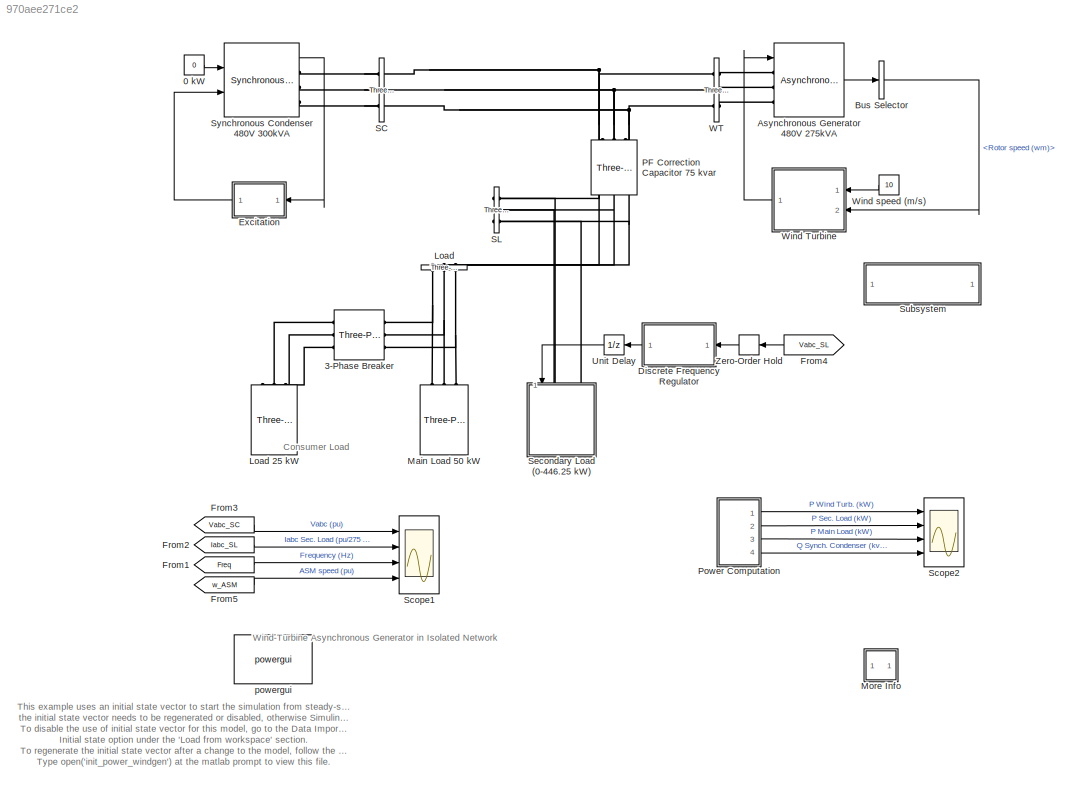
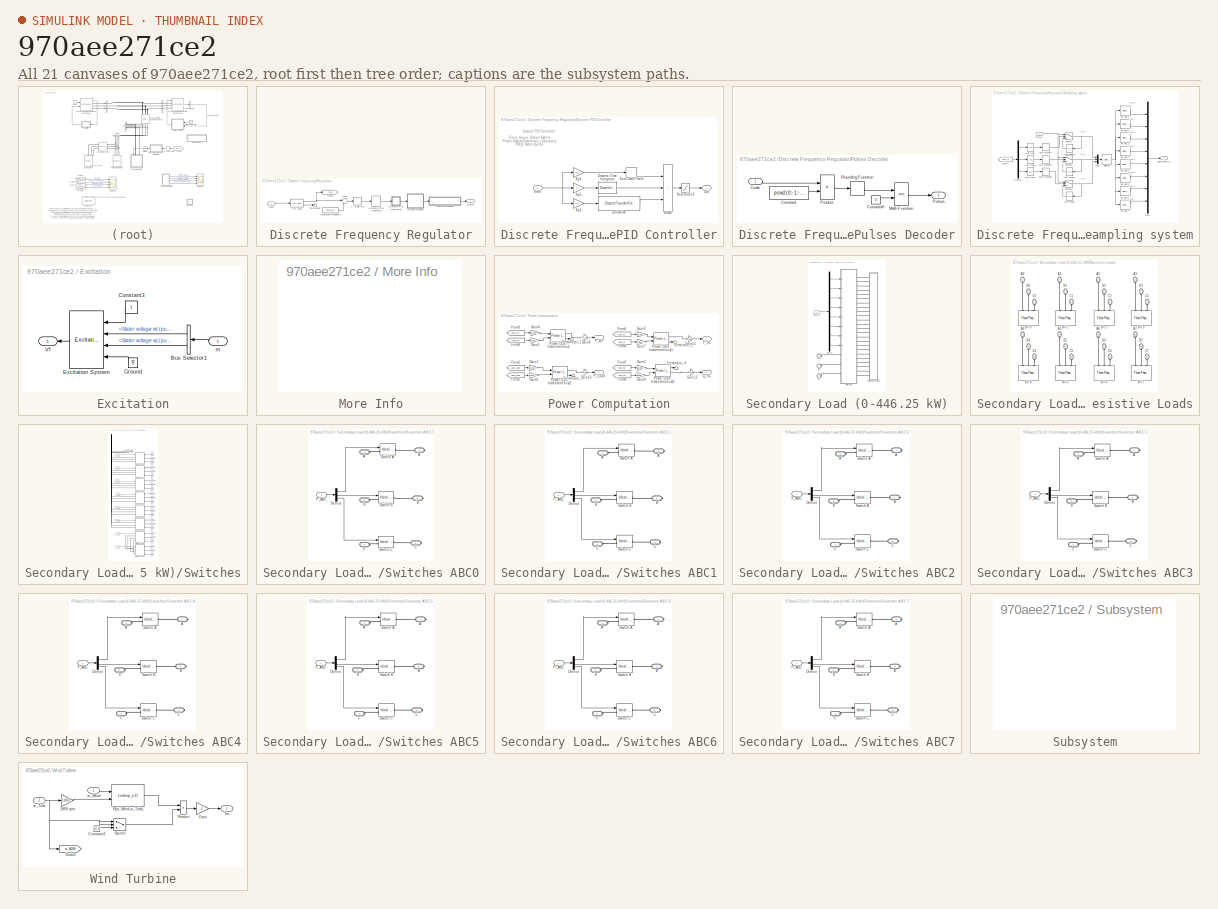
[diagram: thumbnail index - all 21 canvases of the model, root first then tree order]
MODEL slx_970aee271ce2
KIND model
CONFIG AbsTol = auto
CONFIG EnableMultiTasking = on
CONFIG FixedStep = auto
CONFIG InitFcn = [xInitial,psbwindgen_char] = init_power_windgen;
CONFIG MaxStep = auto
CONFIG MinStep = auto
CONFIG PostLoadFcn = find_system (gcs, 'LookUnderMasks', 'all', 'FollowLinks', 'on');
CONFIG RelTol = 1e-4
CONFIG SampleTimeConstraint = Unconstrained
CONFIG SolverName = ode23tb
CONFIG StartTime = 0.0
CONFIG StopTime = 5
BLOCK [Constant] 0 kW
  Value = 0
BLOCK [Reference] 3-Phase Breaker  REF=spsThreePhaseBreakerLib/Three-Phase Breaker
  AttributesFormatString = \n
  Ports = [0, 0, 0, 0, 0, 3, 3]
  SourceBlock = spsThreePhaseBreakerLib/Three-Phase Breaker
  SourceProductBaseCode = PS
  SourceType = Three-Phase Breaker
BLOCK [Reference] Asynchronous Generator 480V 275kVA  REF=spsAsynchronousMachinepuUnitsLib/Asynchronous Machine
pu Units
  AttributesFormatString = \n
  Ports = [1, 1, 0, 0, 0, 3]
  SourceBlock = spsAsynchronousMachinepuUnitsLib/Asynchronous Machine\npu Units
  SourceProductBaseCode = PS
  SourceType = Asynchronous Machine
BLOCK [BusSelector] Bus Selector
  OutputSignals = Mechanical.Rotor speed (wm)
  Ports = [1, 1]
BLOCK [SubSystem] Discrete Frequency Regulator
  Ports = [1, 1]
  RequestExecContextInheritance = off
BLOCK [DeadZone] Discrete Frequency Regulator/+//- 0.005 Hz
  LowerValue = -0.005
  UpperValue = 0.005
BLOCK [Outport] Discrete Frequency Regulator/Control
  VectorParamsAs1DForOutWhenUnconnected = off
BLOCK [SubSystem] Discrete Frequency Regulator/Discrete PID Controller
  DialogController = POWERSYS.PowerSysDialog
  Ports = [1, 1]
  RequestExecContextInheritance = off
BLOCK [DiscreteTransferFcn] Discrete Frequency Regulator/Discrete PID Controller/Derivative 
  Denominator = [Ts+2*TcD Ts-2*TcD]
  InputPortMap = u0
  Numerator = [2 -2]
  Ports = [1, 1]
  SampleTime = Ts
BLOCK [DiscreteIntegrator] Discrete Frequency Regulator/Discrete PID Controller/Discrete-Time Integrator
  ICPrevOutput = DiscIntNeverNeededParam
  ICPrevScaledInput = DiscIntNeverNeededParam
  InitialCondition = Init
  LimitOutput = on
  LowerSaturationLimit = LowerLimit
  Ports = [1, 1]
  SampleTime = Ts
  UpperSaturationLimit = UpperLimit
BLOCK [Inport] Discrete Frequency Regulator/Discrete PID Controller/Error
  SampleTime = Ts
BLOCK [Gain] Discrete Frequency Regulator/Discrete PID Controller/Kp4
  Gain = Kp
  OutDataTypeStr = Inherit: Same as input
  ParamDataTypeStr = Inherit: Same as input
  SampleTime = Ts
  SaturateOnIntegerOverflow = on
BLOCK [Gain] Discrete Frequency Regulator/Discrete PID Controller/Kp5
  Gain = Ki
  OutDataTypeStr = Inherit: Same as input
  ParamDataTypeStr = Inherit: Same as input
  SampleTime = Ts
  SaturateOnIntegerOverflow = on
BLOCK [Gain] Discrete Frequency Regulator/Discrete PID Controller/Kp6
  Gain = Kd
  OutDataTypeStr = Inherit: Same as input
  ParamDataTypeStr = Inherit: Same as input
  SampleTime = Ts
  SaturateOnIntegerOverflow = on
BLOCK [Outport] Discrete Frequency Regulator/Discrete PID Controller/Out
  InitialOutput = 0
  SampleTime = Ts
  VectorParamsAs1DForOutWhenUnconnected = off
BLOCK [Saturate] Discrete Frequency Regulator/Discrete PID Controller/Saturation2
  LowerLimit = LowerLimit
  NameLocation = top
  SampleTime = Ts
  UpperLimit = UpperLimit
BLOCK [Sum] Discrete Frequency Regulator/Discrete PID Controller/Sum6
  IconShape = rectangular
  InputSameDT = on
  Inputs = +++
  OutDataTypeStr = Inherit: Same as first input
  Ports = [3, 1]
  SampleTime = Ts
  SaturateOnIntegerOverflow = on
BLOCK [ZeroOrderHold] Discrete Frequency Regulator/Discrete PID Controller/Zero-Order Hold
  SampleTime = Ts
BLOCK [DiscreteIntegrator] Discrete Frequency Regulator/Discrete-Time Integrator
  ICPrevOutput = DiscIntNeverNeededParam
  ICPrevScaledInput = DiscIntNeverNeededParam
  LimitOutput = on
  LowerSaturationLimit = 0
  Ports = [1, 1]
  SampleTime = Ts
  UpperSaturationLimit = 1
BLOCK [Goto] Discrete Frequency Regulator/Goto1
  GotoTag = Freq
  TagVisibility = global
BLOCK [Reference] Discrete Frequency Regulator/PLL (3ph)  REF=spsPLL3phLib/PLL
(3ph)
  Ports = [1, 2]
  SourceBlock = spsPLL3phLib/PLL\n(3ph)
  SourceProductBaseCode = PS
  SourceType = PLL (3ph)
BLOCK [SubSystem] Discrete Frequency Regulator/Pulses Decoder
  Ports = [1, 1]
  RequestExecContextInheritance = off
BLOCK [Inport] Discrete Frequency Regulator/Pulses Decoder/Code
BLOCK [Constant] Discrete Frequency Regulator/Pulses Decoder/Constant
  Value = pow2(0:-1:-(n-1))
BLOCK [Constant] Discrete Frequency Regulator/Pulses Decoder/Constant6
  Value = 2
BLOCK [Math] Discrete Frequency Regulator/Pulses Decoder/Math Function
  Operator = rem
  Ports = [2, 1]
  SignedPower = on
BLOCK [Product] Discrete Frequency Regulator/Pulses Decoder/Product
  InputSameDT = on
  OutDataTypeStr = Inherit: Same as first input
  Ports = [2, 1]
  SaturateOnIntegerOverflow = on
BLOCK [Outport] Discrete Frequency Regulator/Pulses Decoder/Pulses
  VectorParamsAs1DForOutWhenUnconnected = off
BLOCK [Rounding] Discrete Frequency Regulator/Pulses Decoder/Rounding Function
BLOCK [Constant] Discrete Frequency Regulator/Reference Frequency
  Value = Freq_ref
BLOCK [SubSystem] Discrete Frequency Regulator/Sampling system
  Ports = [1, 1]
  RequestExecContextInheritance = off
BLOCK [Selector] Discrete Frequency Regulator/Sampling system/ Bit ABC4
  IndexOptions = Index vector (dialog)
  Indices = [13 14 15]
  InputPortWidth = 24
  OutputSizes = 1
  Ports = [1, 1]
BLOCK [Inport] Discrete Frequency Regulator/Sampling system/BITA0_7
BLOCK [Selector] Discrete Frequency Regulator/Sampling system/Bit ABC0
  IndexOptions = Index vector (dialog)
  Indices = [1 2 3]
  InputPortWidth = 24
  OutputSizes = 1
  Ports = [1, 1]
BLOCK [Selector] Discrete Frequency Regulator/Sampling system/Bit ABC1
  IndexOptions = Index vector (dialog)
  Indices = [4 5 6]
  InputPortWidth = 24
  OutputSizes = 1
  Ports = [1, 1]
BLOCK [Selector] Discrete Frequency Regulator/Sampling system/Bit ABC2
  IndexOptions = Index vector (dialog)
  Indices = [7 8 9]
  InputPortWidth = 24
  OutputSizes = 1
  Ports = [1, 1]
BLOCK [Selector] Discrete Frequency Regulator/Sampling system/Bit ABC3
  IndexOptions = Index vector (dialog)
  Indices = [10 11 12]
  InputPortWidth = 24
  OutputSizes = 1
  Ports = [1, 1]
BLOCK [Selector] Discrete Frequency Regulator/Sampling system/Bit ABC5
  IndexOptions = Index vector (dialog)
  Indices = [16 17 18]
  InputPortWidth = 24
  OutputSizes = 1
  Ports = [1, 1]
BLOCK [Selector] Discrete Frequency Regulator/Sampling system/Bit ABC6
  IndexOptions = Index vector (dialog)
  Indices = [19 20 21]
  InputPortWidth = 24
  OutputSizes = 1
  Ports = [1, 1]
BLOCK [Selector] Discrete Frequency Regulator/Sampling system/Bit ABC7
  IndexOptions = Index vector (dialog)
  Indices = [22 23 24]
  InputPortWidth = 24
  OutputSizes = 1
  Ports = [1, 1]
BLOCK [Demux] Discrete Frequency Regulator/Sampling system/Demux
  DisplayOption = none
  Outputs = 3
  Ports = [1, 3]
BLOCK [From] Discrete Frequency Regulator/Sampling system/From4
  CloseFcn = tagdialog Close
  GotoTag = Vabc_SL
  TagVisibility = global
BLOCK [Mux] Discrete Frequency Regulator/Sampling system/Mux
  DisplayOption = bar
  Inputs = 3
  Ports = [3, 1]
BLOCK [Mux] Discrete Frequency Regulator/Sampling system/Mux1
  DisplayOption = bar
  Inputs = 8
  Ports = [8, 1]
BLOCK [Outport] Discrete Frequency Regulator/Sampling system/Pulses_ABC0_7
  VectorParamsAs1DForOutWhenUnconnected = off
BLOCK [Selector] Discrete Frequency Regulator/Sampling system/Selector
  IndexOptions = Index vector (dialog)
  Indices = [1 9 17 2 10 18 3 11 19 4 12 20 5 13 21 6 14 22 7 15 23 8 16 24]
  InputPortWidth = 24
  OutputSizes = 1
  Ports = [1, 1]
BLOCK [Switch] Discrete Frequency Regulator/Sampling system/Switch
  Threshold = 0.5
BLOCK [Switch] Discrete Frequency Regulator/Sampling system/Switch1
  Threshold = 0.5
BLOCK [Switch] Discrete Frequency Regulator/Sampling system/Switch2
  Threshold = 0.5
BLOCK [UnitDelay] Discrete Frequency Regulator/Sampling system/Unit Delay
  HasFrameUpgradeWarning = on
  SampleTime = Ts
BLOCK [UnitDelay] Discrete Frequency Regulator/Sampling system/Unit Delay1
  HasFrameUpgradeWarning = on
  SampleTime = Ts
BLOCK [UnitDelay] Discrete Frequency Regulator/Sampling system/Unit Delay2
  HasFrameUpgradeWarning = on
  SampleTime = Ts
BLOCK [UnitDelay] Discrete Frequency Regulator/Sampling system/Unit Delay4
  HasFrameUpgradeWarning = on
  SampleTime = Ts
BLOCK [UnitDelay] Discrete Frequency Regulator/Sampling system/Unit Delay5
  HasFrameUpgradeWarning = on
  SampleTime = Ts
BLOCK [UnitDelay] Discrete Frequency Regulator/Sampling system/Unit Delay6
  HasFrameUpgradeWarning = on
  SampleTime = Ts
BLOCK [HitCross] Discrete Frequency Regulator/Sampling system/Zero crossing
  Ports = [1, 1]
BLOCK [HitCross] Discrete Frequency Regulator/Sampling system/Zero crossing1
  Ports = [1, 1]
BLOCK [HitCross] Discrete Frequency Regulator/Sampling system/Zero crossing2
  Ports = [1, 1]
BLOCK [Sum] Discrete Frequency Regulator/Sum
  InputSameDT = on
  Inputs = |+-
  OutDataTypeStr = Inherit: Same as first input
  Ports = [2, 1]
  SaturateOnIntegerOverflow = on
BLOCK [Terminator] Discrete Frequency Regulator/Terminator
BLOCK [Inport] Discrete Frequency Regulator/Vabc
BLOCK [SubSystem] Excitation
  NameLocation = top
  Ports = [1, 1]
  RequestExecContextInheritance = off
BLOCK [BusSelector] Excitation/Bus Selector1
  NameLocation = top
  OutputSignals = dq0 components.Stator voltage  vd (pu),dq0 components.Stator voltage  vq (pu)
  Ports = [1, 2]
BLOCK [Constant] Excitation/Constant3
  NameLocation = top
BLOCK [Reference] Excitation/Excitation System  REF=spsExcitationSystemLib/Excitation System
  Ports = [4, 1]
  SourceBlock = spsExcitationSystemLib/Excitation System
  SourceProductBaseCode = PS
  SourceType = Excitation System
BLOCK [Ground] Excitation/Ground
BLOCK [Outport] Excitation/Vf
  VectorParamsAs1DForOutWhenUnconnected = off
BLOCK [Inport] Excitation/m
BLOCK [From] From1
  CloseFcn = tagdialog Close
  GotoTag = Freq
  TagVisibility = global
BLOCK [From] From2
  CloseFcn = tagdialog Close
  GotoTag = Iabc_SL
  TagVisibility = global
BLOCK [From] From3
  CloseFcn = tagdialog Close
  GotoTag = Vabc_SC
  TagVisibility = global
BLOCK [From] From4
  CloseFcn = tagdialog Close
  GotoTag = Vabc_SL
  TagVisibility = global
BLOCK [From] From5
  CloseFcn = tagdialog Close
  GotoTag = w_ASM
  TagVisibility = global
BLOCK [Reference] Load  REF=spsThreePhaseVIMeasurementLib/Three-Phase
V-I Measurement
  NameLocation = left
  Ports = [0, 0, 0, 0, 0, 3, 3]
  SourceBlock = spsThreePhaseVIMeasurementLib/Three-Phase\nV-I Measurement
  SourceProductBaseCode = PS
  SourceType = Three-Phase VI Measurement
BLOCK [Reference] Load 25 kW  REF=spsThreePhaseParallelRLCLoadLib/Three-Phase
Parallel RLC Load
  AttributesFormatString = \n
  NameLocation = right
  Ports = [0, 0, 0, 0, 0, 3]
  SourceBlock = spsThreePhaseParallelRLCLoadLib/Three-Phase\nParallel RLC Load
  SourceProductBaseCode = PS
  SourceType = Three-Phase Parallel RLC Load
BLOCK [Reference] Main Load 50 kW  REF=spsThreePhaseParallelRLCLoadLib/Three-Phase
Parallel RLC Load
  AttributesFormatString = \n
  NameLocation = left
  Ports = [0, 0, 0, 0, 0, 3]
  SourceBlock = spsThreePhaseParallelRLCLoadLib/Three-Phase\nParallel RLC Load
  SourceProductBaseCode = PS
  SourceType = Three-Phase Parallel RLC Load
BLOCK [SubSystem] More Info
  OpenFcn = showdemo(bdroot(gcb))
  Ports = []
  RequestExecContextInheritance = off
BLOCK [Reference] PF Correction Capacitor 75 kvar  REF=spsThreePhaseParallelRLCLoadLib/Three-Phase
Parallel RLC Load
  AttributesFormatString = \n
  NameLocation = right
  Ports = [0, 0, 0, 0, 0, 3]
  SourceBlock = spsThreePhaseParallelRLCLoadLib/Three-Phase\nParallel RLC Load
  SourceProductBaseCode = PS
  SourceType = Three-Phase Parallel RLC Load
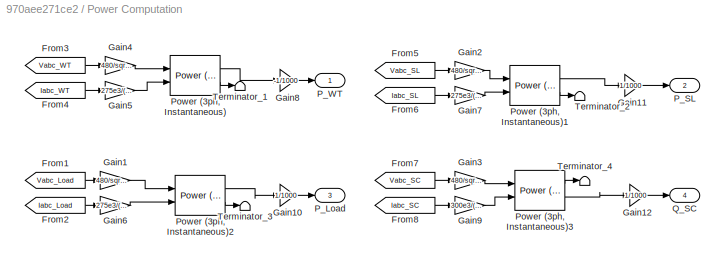
BLOCK [SubSystem] Power Computation
  Ports = [0, 4]
  RequestExecContextInheritance = off
BLOCK [From] Power Computation/From1
  CloseFcn = tagdialog Close
  GotoTag = Vabc_Load
  TagVisibility = global
BLOCK [From] Power Computation/From2
  CloseFcn = tagdialog Close
  GotoTag = Iabc_Load
  TagVisibility = global
BLOCK [From] Power Computation/From3
  CloseFcn = tagdialog Close
  GotoTag = Vabc_WT
  TagVisibility = global
BLOCK [From] Power Computation/From4
  CloseFcn = tagdialog Close
  GotoTag = Iabc_WT
  TagVisibility = global
BLOCK [From] Power Computation/From5
  CloseFcn = tagdialog Close
  GotoTag = Vabc_SL
  TagVisibility = global
BLOCK [From] Power Computation/From6
  CloseFcn = tagdialog Close
  GotoTag = Iabc_SL
  TagVisibility = global
BLOCK [From] Power Computation/From7
  CloseFcn = tagdialog Close
  GotoTag = Vabc_SC
  TagVisibility = global
BLOCK [From] Power Computation/From8
  CloseFcn = tagdialog Close
  GotoTag = Iabc_SC
  TagVisibility = global
BLOCK [Gain] Power Computation/Gain1
  Gain = 480/sqrt(3)*sqrt(2)
  OutDataTypeStr = Inherit: Same as input
  ParamDataTypeStr = Inherit: Same as input
  SaturateOnIntegerOverflow = on
BLOCK [Gain] Power Computation/Gain10
  Gain = 1/1000
  OutDataTypeStr = Inherit: Same as input
  ParamDataTypeStr = Inherit: Same as input
  SaturateOnIntegerOverflow = on
BLOCK [Gain] Power Computation/Gain11
  Gain = 1/1000
  OutDataTypeStr = Inherit: Same as input
  ParamDataTypeStr = Inherit: Same as input
  SaturateOnIntegerOverflow = on
BLOCK [Gain] Power Computation/Gain12
  Gain = 1/1000
  OutDataTypeStr = Inherit: Same as input
  ParamDataTypeStr = Inherit: Same as input
  SaturateOnIntegerOverflow = on
BLOCK [Gain] Power Computation/Gain2
  Gain = 480/sqrt(3)*sqrt(2)
  OutDataTypeStr = Inherit: Same as input
  ParamDataTypeStr = Inherit: Same as input
  SaturateOnIntegerOverflow = on
BLOCK [Gain] Power Computation/Gain3
  Gain = 480/sqrt(3)*sqrt(2)
  OutDataTypeStr = Inherit: Same as input
  ParamDataTypeStr = Inherit: Same as input
  SaturateOnIntegerOverflow = on
BLOCK [Gain] Power Computation/Gain4
  Gain = 480/sqrt(3)*sqrt(2)
  OutDataTypeStr = Inherit: Same as input
  ParamDataTypeStr = Inherit: Same as input
  SaturateOnIntegerOverflow = on
BLOCK [Gain] Power Computation/Gain5
  Gain = 275e3/(sqrt(3)*480)*sqrt(2)
  OutDataTypeStr = Inherit: Same as input
  ParamDataTypeStr = Inherit: Same as input
  SaturateOnIntegerOverflow = on
BLOCK [Gain] Power Computation/Gain6
  Gain = 275e3/(sqrt(3)*480)*sqrt(2)
  OutDataTypeStr = Inherit: Same as input
  ParamDataTypeStr = Inherit: Same as input
  SaturateOnIntegerOverflow = on
BLOCK [Gain] Power Computation/Gain7
  Gain = 275e3/(sqrt(3)*480)*sqrt(2)
  OutDataTypeStr = Inherit: Same as input
  ParamDataTypeStr = Inherit: Same as input
  SaturateOnIntegerOverflow = on
BLOCK [Gain] Power Computation/Gain8
  Gain = -1/1000
  OutDataTypeStr = Inherit: Same as input
  ParamDataTypeStr = Inherit: Same as input
  SaturateOnIntegerOverflow = on
BLOCK [Gain] Power Computation/Gain9
  Gain = 300e3/(sqrt(3)*480)*sqrt(2)
  OutDataTypeStr = Inherit: Same as input
  ParamDataTypeStr = Inherit: Same as input
  SaturateOnIntegerOverflow = on
BLOCK [Outport] Power Computation/P_Load
  Port = 3
  VectorParamsAs1DForOutWhenUnconnected = off
BLOCK [Outport] Power Computation/P_SL
  Port = 2
  VectorParamsAs1DForOutWhenUnconnected = off
BLOCK [Outport] Power Computation/P_WT
  VectorParamsAs1DForOutWhenUnconnected = off
BLOCK [Reference] Power Computation/Power (3ph, Instantaneous)  REF=spsPower3phInstantaneousLib/Power
(3ph, Instantaneous)
  Ports = [2, 2]
  SourceBlock = spsPower3phInstantaneousLib/Power\n(3ph, Instantaneous)
  SourceProductBaseCode = PS
  SourceType = Power (3ph, Instantaneous)
BLOCK [Reference] Power Computation/Power (3ph, Instantaneous)1  REF=spsPower3phInstantaneousLib/Power
(3ph, Instantaneous)
  Ports = [2, 2]
  SourceBlock = spsPower3phInstantaneousLib/Power\n(3ph, Instantaneous)
  SourceProductBaseCode = PS
  SourceType = Power (3ph, Instantaneous)
BLOCK [Reference] Power Computation/Power (3ph, Instantaneous)2  REF=spsPower3phInstantaneousLib/Power
(3ph, Instantaneous)
  Ports = [2, 2]
  SourceBlock = spsPower3phInstantaneousLib/Power\n(3ph, Instantaneous)
  SourceProductBaseCode = PS
  SourceType = Power (3ph, Instantaneous)
BLOCK [Reference] Power Computation/Power (3ph, Instantaneous)3  REF=spsPower3phInstantaneousLib/Power
(3ph, Instantaneous)
  Ports = [2, 2]
  SourceBlock = spsPower3phInstantaneousLib/Power\n(3ph, Instantaneous)
  SourceProductBaseCode = PS
  SourceType = Power (3ph, Instantaneous)
BLOCK [Outport] Power Computation/Q_SC
  Port = 4
  VectorParamsAs1DForOutWhenUnconnected = off
BLOCK [Terminator] Power Computation/Terminator_1
BLOCK [Terminator] Power Computation/Terminator_2
BLOCK [Terminator] Power Computation/Terminator_3
BLOCK [Terminator] Power Computation/Terminator_4
BLOCK [Reference] SC  REF=spsThreePhaseVIMeasurementLib/Three-Phase
V-I Measurement
  Ports = [0, 0, 0, 0, 0, 3, 3]
  SourceBlock = spsThreePhaseVIMeasurementLib/Three-Phase\nV-I Measurement
  SourceProductBaseCode = PS
  SourceType = Three-Phase VI Measurement
BLOCK [Reference] SL  REF=spsThreePhaseVIMeasurementLib/Three-Phase
V-I Measurement
  Ports = [0, 0, 0, 0, 0, 3, 3]
  SourceBlock = spsThreePhaseVIMeasurementLib/Three-Phase\nV-I Measurement
  SourceProductBaseCode = PS
  SourceType = Three-Phase VI Measurement
BLOCK [Scope] Scope1
  Floating = off
  NumInputPorts = 4
  Ports = [4]
  ScopeSpecificationString = Simulink.scopes.TimeScopeBlockCfg('CurrentConfiguration', extmgr.ConfigurationSet(extmgr.Configuration('Core','General UI',true),extmgr.Configuration('Core','Source UI',true),extmgr.Configuration('Sources','WiredSimulink',true,'DataLoggingSaveFormat','Array','DataLoggingDecimation','1'),extmgr.Configuration('Visuals','Time Domain',true,'SerializedDisplays',{struct('MinYLimReal','-2','MaxYLimReal',...<+3791ch>
BLOCK [Scope] Scope2
  Floating = off
  NumInputPorts = 4
  Ports = [4]
  ScopeSpecificationString = Simulink.scopes.TimeScopeBlockCfg('CurrentConfiguration', extmgr.ConfigurationSet(extmgr.Configuration('Core','General UI',true),extmgr.Configuration('Core','Source UI',true),extmgr.Configuration('Sources','WiredSimulink',true,'DataLoggingSaveFormat','Array','DataLoggingDecimation','1'),extmgr.Configuration('Visuals','Time Domain',true,'SerializedDisplays',{struct('MinYLimReal','189.66316','MaxYLi...<+3747ch>
BLOCK [SubSystem] Secondary Load (0-446.25 kW)
  NameLocation = right
  Ports = [1, 0, 0, 0, 0, 3]
  RequestExecContextInheritance = off
BLOCK [PMIOPort] Secondary Load (0-446.25 kW)/A
  NameLocation = top
  Side = Left
BLOCK [PMIOPort] Secondary Load (0-446.25 kW)/B
  NameLocation = top
  Port = 2
  Side = Left
BLOCK [PMIOPort] Secondary Load (0-446.25 kW)/C
  NameLocation = top
  Port = 3
  Side = Left
BLOCK [Inport] Secondary Load (0-446.25 kW)/Control
BLOCK [Demux] Secondary Load (0-446.25 kW)/Demux
  DisplayOption = none
  Outputs = 8
  Ports = [1, 8]
BLOCK [SubSystem] Secondary Load (0-446.25 kW)/Resistive Loads
  Ports = [0, 0, 0, 0, 0, 24]
  RequestExecContextInheritance = off
BLOCK [PMIOPort] Secondary Load (0-446.25 kW)/Resistive Loads/A0
  NameLocation = right
  Side = Left
BLOCK [PMIOPort] Secondary Load (0-446.25 kW)/Resistive Loads/A1
  NameLocation = right
  Port = 4
  Side = Left
BLOCK [PMIOPort] Secondary Load (0-446.25 kW)/Resistive Loads/A2
  NameLocation = right
  Port = 7
  Side = Left
BLOCK [PMIOPort] Secondary Load (0-446.25 kW)/Resistive Loads/A3
  NameLocation = right
  Port = 10
  Side = Left
BLOCK [PMIOPort] Secondary Load (0-446.25 kW)/Resistive Loads/A4
  NameLocation = right
  Port = 13
  Side = Left
BLOCK [PMIOPort] Secondary Load (0-446.25 kW)/Resistive Loads/A5
  NameLocation = right
  Port = 16
  Side = Left
BLOCK [PMIOPort] Secondary Load (0-446.25 kW)/Resistive Loads/A6
  NameLocation = right
  Port = 19
  Side = Left
BLOCK [PMIOPort] Secondary Load (0-446.25 kW)/Resistive Loads/A7
  NameLocation = right
  Port = 22
  Side = Left
BLOCK [PMIOPort] Secondary Load (0-446.25 kW)/Resistive Loads/B0
  NameLocation = right
  Port = 2
  Side = Left
BLOCK [PMIOPort] Secondary Load (0-446.25 kW)/Resistive Loads/B1
  NameLocation = right
  Port = 5
  Side = Left
BLOCK [PMIOPort] Secondary Load (0-446.25 kW)/Resistive Loads/B2
  NameLocation = right
  Port = 8
  Side = Left
BLOCK [PMIOPort] Secondary Load (0-446.25 kW)/Resistive Loads/B3
  NameLocation = right
  Port = 11
  Side = Left
BLOCK [PMIOPort] Secondary Load (0-446.25 kW)/Resistive Loads/B4
  NameLocation = right
  Port = 14
  Side = Left
BLOCK [PMIOPort] Secondary Load (0-446.25 kW)/Resistive Loads/B5
  NameLocation = right
  Port = 17
  Side = Left
BLOCK [PMIOPort] Secondary Load (0-446.25 kW)/Resistive Loads/B6
  NameLocation = right
  Port = 20
  Side = Left
BLOCK [PMIOPort] Secondary Load (0-446.25 kW)/Resistive Loads/B7
  NameLocation = right
  Port = 23
  Side = Left
BLOCK [Reference] Secondary Load (0-446.25 kW)/Resistive Loads/Bit 0  REF=spsThreePhaseParallelRLCLoadLib/Three-Phase
Parallel RLC Load
  AttributesFormatString = \n
  NameLocation = right
  Ports = [0, 0, 0, 0, 0, 3]
  SourceBlock = spsThreePhaseParallelRLCLoadLib/Three-Phase\nParallel RLC Load
  SourceProductBaseCode = PS
  SourceType = Three-Phase Parallel RLC Load
BLOCK [Reference] Secondary Load (0-446.25 kW)/Resistive Loads/Bit 1  REF=spsThreePhaseParallelRLCLoadLib/Three-Phase
Parallel RLC Load
  AttributesFormatString = \n
  NameLocation = right
  Ports = [0, 0, 0, 0, 0, 3]
  SourceBlock = spsThreePhaseParallelRLCLoadLib/Three-Phase\nParallel RLC Load
  SourceProductBaseCode = PS
  SourceType = Three-Phase Parallel RLC Load
BLOCK [Reference] Secondary Load (0-446.25 kW)/Resistive Loads/Bit 2  REF=spsThreePhaseParallelRLCLoadLib/Three-Phase
Parallel RLC Load
  AttributesFormatString = \n
  NameLocation = right
  Ports = [0, 0, 0, 0, 0, 3]
  SourceBlock = spsThreePhaseParallelRLCLoadLib/Three-Phase\nParallel RLC Load
  SourceProductBaseCode = PS
  SourceType = Three-Phase Parallel RLC Load
BLOCK [Reference] Secondary Load (0-446.25 kW)/Resistive Loads/Bit 3  REF=spsThreePhaseParallelRLCLoadLib/Three-Phase
Parallel RLC Load
  AttributesFormatString = \n
  NameLocation = right
  Ports = [0, 0, 0, 0, 0, 3]
  SourceBlock = spsThreePhaseParallelRLCLoadLib/Three-Phase\nParallel RLC Load
  SourceProductBaseCode = PS
  SourceType = Three-Phase Parallel RLC Load
BLOCK [Reference] Secondary Load (0-446.25 kW)/Resistive Loads/Bit 4  REF=spsThreePhaseParallelRLCLoadLib/Three-Phase
Parallel RLC Load
  AttributesFormatString = \n
  NameLocation = right
  Ports = [0, 0, 0, 0, 0, 3]
  SourceBlock = spsThreePhaseParallelRLCLoadLib/Three-Phase\nParallel RLC Load
  SourceProductBaseCode = PS
  SourceType = Three-Phase Parallel RLC Load
BLOCK [Reference] Secondary Load (0-446.25 kW)/Resistive Loads/Bit 5  REF=spsThreePhaseParallelRLCLoadLib/Three-Phase
Parallel RLC Load
  AttributesFormatString = \n
  NameLocation = right
  Ports = [0, 0, 0, 0, 0, 3]
  SourceBlock = spsThreePhaseParallelRLCLoadLib/Three-Phase\nParallel RLC Load
  SourceProductBaseCode = PS
  SourceType = Three-Phase Parallel RLC Load
BLOCK [Reference] Secondary Load (0-446.25 kW)/Resistive Loads/Bit 6  REF=spsThreePhaseParallelRLCLoadLib/Three-Phase
Parallel RLC Load
  AttributesFormatString = \n
  NameLocation = right
  Ports = [0, 0, 0, 0, 0, 3]
  SourceBlock = spsThreePhaseParallelRLCLoadLib/Three-Phase\nParallel RLC Load
  SourceProductBaseCode = PS
  SourceType = Three-Phase Parallel RLC Load
BLOCK [Reference] Secondary Load (0-446.25 kW)/Resistive Loads/Bit 7  REF=spsThreePhaseParallelRLCLoadLib/Three-Phase
Parallel RLC Load
  AttributesFormatString = \n
  NameLocation = right
  Ports = [0, 0, 0, 0, 0, 3]
  SourceBlock = spsThreePhaseParallelRLCLoadLib/Three-Phase\nParallel RLC Load
  SourceProductBaseCode = PS
  SourceType = Three-Phase Parallel RLC Load
BLOCK [PMIOPort] Secondary Load (0-446.25 kW)/Resistive Loads/C0
  NameLocation = right
  Port = 3
  Side = Left
BLOCK [PMIOPort] Secondary Load (0-446.25 kW)/Resistive Loads/C1
  NameLocation = right
  Port = 6
  Side = Left
BLOCK [PMIOPort] Secondary Load (0-446.25 kW)/Resistive Loads/C2
  NameLocation = right
  Port = 9
  Side = Left
BLOCK [PMIOPort] Secondary Load (0-446.25 kW)/Resistive Loads/C3
  NameLocation = right
  Port = 12
  Side = Left
BLOCK [PMIOPort] Secondary Load (0-446.25 kW)/Resistive Loads/C4
  NameLocation = right
  Port = 15
  Side = Left
BLOCK [PMIOPort] Secondary Load (0-446.25 kW)/Resistive Loads/C5
  NameLocation = right
  Port = 18
  Side = Left
BLOCK [PMIOPort] Secondary Load (0-446.25 kW)/Resistive Loads/C6
  NameLocation = right
  Port = 21
  Side = Left
BLOCK [PMIOPort] Secondary Load (0-446.25 kW)/Resistive Loads/C7
  NameLocation = right
  Port = 24
  Side = Left
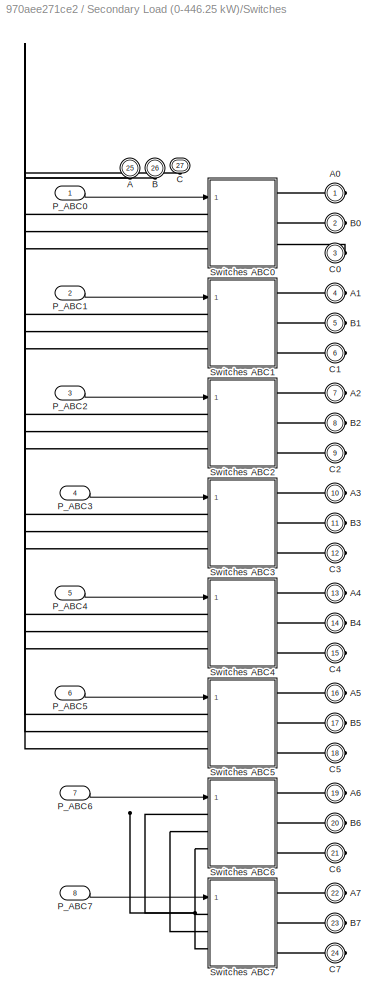
BLOCK [SubSystem] Secondary Load (0-446.25 kW)/Switches
  Ports = [8, 0, 0, 0, 0, 3, 24]
  RequestExecContextInheritance = off
BLOCK [PMIOPort] Secondary Load (0-446.25 kW)/Switches/A
  NameLocation = left
  Port = 25
  Side = Left
BLOCK [PMIOPort] Secondary Load (0-446.25 kW)/Switches/A0
  Side = Right
BLOCK [PMIOPort] Secondary Load (0-446.25 kW)/Switches/A1
  Port = 4
  Side = Right
BLOCK [PMIOPort] Secondary Load (0-446.25 kW)/Switches/A2
  Port = 7
  Side = Right
BLOCK [PMIOPort] Secondary Load (0-446.25 kW)/Switches/A3
  Port = 10
  Side = Right
BLOCK [PMIOPort] Secondary Load (0-446.25 kW)/Switches/A4
  Port = 13
  Side = Right
BLOCK [PMIOPort] Secondary Load (0-446.25 kW)/Switches/A5
  Port = 16
  Side = Right
BLOCK [PMIOPort] Secondary Load (0-446.25 kW)/Switches/A6
  Port = 19
  Side = Right
BLOCK [PMIOPort] Secondary Load (0-446.25 kW)/Switches/A7
  Port = 22
  Side = Right
BLOCK [PMIOPort] Secondary Load (0-446.25 kW)/Switches/B
  NameLocation = right
  Port = 26
  Side = Left
BLOCK [PMIOPort] Secondary Load (0-446.25 kW)/Switches/B0
  Port = 2
  Side = Right
BLOCK [PMIOPort] Secondary Load (0-446.25 kW)/Switches/B1
  Port = 5
  Side = Right
BLOCK [PMIOPort] Secondary Load (0-446.25 kW)/Switches/B2
  Port = 8
  Side = Right
BLOCK [PMIOPort] Secondary Load (0-446.25 kW)/Switches/B3
  Port = 11
  Side = Right
BLOCK [PMIOPort] Secondary Load (0-446.25 kW)/Switches/B4
  Port = 14
  Side = Right
BLOCK [PMIOPort] Secondary Load (0-446.25 kW)/Switches/B5
  Port = 17
  Side = Right
BLOCK [PMIOPort] Secondary Load (0-446.25 kW)/Switches/B6
  Port = 20
  Side = Right
BLOCK [PMIOPort] Secondary Load (0-446.25 kW)/Switches/B7
  Port = 23
  Side = Right
BLOCK [PMIOPort] Secondary Load (0-446.25 kW)/Switches/C
  NameLocation = right
  Port = 27
  Side = Left
BLOCK [PMIOPort] Secondary Load (0-446.25 kW)/Switches/C0
  Port = 3
  Side = Right
BLOCK [PMIOPort] Secondary Load (0-446.25 kW)/Switches/C1
  Port = 6
  Side = Right
BLOCK [PMIOPort] Secondary Load (0-446.25 kW)/Switches/C2
  Port = 9
  Side = Right
BLOCK [PMIOPort] Secondary Load (0-446.25 kW)/Switches/C3
  Port = 12
  Side = Right
BLOCK [PMIOPort] Secondary Load (0-446.25 kW)/Switches/C4
  Port = 15
  Side = Right
BLOCK [PMIOPort] Secondary Load (0-446.25 kW)/Switches/C5
  Port = 18
  Side = Right
BLOCK [PMIOPort] Secondary Load (0-446.25 kW)/Switches/C6
  Port = 21
  Side = Right
BLOCK [PMIOPort] Secondary Load (0-446.25 kW)/Switches/C7
  Port = 24
  Side = Right
BLOCK [Inport] Secondary Load (0-446.25 kW)/Switches/P_ABC0
BLOCK [Inport] Secondary Load (0-446.25 kW)/Switches/P_ABC1
  Port = 2
BLOCK [Inport] Secondary Load (0-446.25 kW)/Switches/P_ABC2
  Port = 3
BLOCK [Inport] Secondary Load (0-446.25 kW)/Switches/P_ABC3
  Port = 4
BLOCK [Inport] Secondary Load (0-446.25 kW)/Switches/P_ABC4
  Port = 5
BLOCK [Inport] Secondary Load (0-446.25 kW)/Switches/P_ABC5
  Port = 6
BLOCK [Inport] Secondary Load (0-446.25 kW)/Switches/P_ABC6
  Port = 7
BLOCK [Inport] Secondary Load (0-446.25 kW)/Switches/P_ABC7
  Port = 8
BLOCK [SubSystem] Secondary Load (0-446.25 kW)/Switches/Switches ABC0
  Ports = [1, 0, 0, 0, 0, 3, 3]
  RequestExecContextInheritance = off
BLOCK [PMIOPort] Secondary Load (0-446.25 kW)/Switches/Switches ABC0/A
  Side = Left
BLOCK [PMIOPort] Secondary Load (0-446.25 kW)/Switches/Switches ABC0/A 
  Port = 4
  Side = Right
BLOCK [PMIOPort] Secondary Load (0-446.25 kW)/Switches/Switches ABC0/B
  Port = 2
  Side = Left
BLOCK [PMIOPort] Secondary Load (0-446.25 kW)/Switches/Switches ABC0/B 
  Port = 5
  Side = Right
BLOCK [PMIOPort] Secondary Load (0-446.25 kW)/Switches/Switches ABC0/C
  Port = 3
  Side = Left
BLOCK [PMIOPort] Secondary Load (0-446.25 kW)/Switches/Switches ABC0/C 
  Port = 6
  Side = Right
BLOCK [Demux] Secondary Load (0-446.25 kW)/Switches/Switches ABC0/Demux
  DisplayOption = none
  Outputs = 3
  Ports = [1, 3]
BLOCK [Inport] Secondary Load (0-446.25 kW)/Switches/Switches ABC0/P_ABC
BLOCK [Reference] Secondary Load (0-446.25 kW)/Switches/Switches ABC0/Switch A  REF=spsIdealSwitchLib/Ideal Switch
  AttributesFormatString = \n
  Ports = [1, 0, 0, 0, 0, 1, 1]
  SourceBlock = spsIdealSwitchLib/Ideal Switch
  SourceProductBaseCode = PS
  SourceType = Ideal Switch
BLOCK [Reference] Secondary Load (0-446.25 kW)/Switches/Switches ABC0/Switch B  REF=spsIdealSwitchLib/Ideal Switch
  AttributesFormatString = \n
  Ports = [1, 0, 0, 0, 0, 1, 1]
  SourceBlock = spsIdealSwitchLib/Ideal Switch
  SourceProductBaseCode = PS
  SourceType = Ideal Switch
BLOCK [Reference] Secondary Load (0-446.25 kW)/Switches/Switches ABC0/Switch C  REF=spsIdealSwitchLib/Ideal Switch
  AttributesFormatString = \n
  Ports = [1, 0, 0, 0, 0, 1, 1]
  SourceBlock = spsIdealSwitchLib/Ideal Switch
  SourceProductBaseCode = PS
  SourceType = Ideal Switch
BLOCK [SubSystem] Secondary Load (0-446.25 kW)/Switches/Switches ABC1
  Ports = [1, 0, 0, 0, 0, 3, 3]
  RequestExecContextInheritance = off
BLOCK [PMIOPort] Secondary Load (0-446.25 kW)/Switches/Switches ABC1/A
  Side = Left
BLOCK [PMIOPort] Secondary Load (0-446.25 kW)/Switches/Switches ABC1/A 
  Port = 4
  Side = Right
BLOCK [PMIOPort] Secondary Load (0-446.25 kW)/Switches/Switches ABC1/B
  Port = 2
  Side = Left
BLOCK [PMIOPort] Secondary Load (0-446.25 kW)/Switches/Switches ABC1/B 
  Port = 5
  Side = Right
BLOCK [PMIOPort] Secondary Load (0-446.25 kW)/Switches/Switches ABC1/C
  Port = 3
  Side = Left
BLOCK [PMIOPort] Secondary Load (0-446.25 kW)/Switches/Switches ABC1/C 
  Port = 6
  Side = Right
BLOCK [Demux] Secondary Load (0-446.25 kW)/Switches/Switches ABC1/Demux
  DisplayOption = none
  Outputs = 3
  Ports = [1, 3]
BLOCK [Inport] Secondary Load (0-446.25 kW)/Switches/Switches ABC1/P_ABC
BLOCK [Reference] Secondary Load (0-446.25 kW)/Switches/Switches ABC1/Switch A  REF=spsIdealSwitchLib/Ideal Switch
  AttributesFormatString = \n
  Ports = [1, 0, 0, 0, 0, 1, 1]
  SourceBlock = spsIdealSwitchLib/Ideal Switch
  SourceProductBaseCode = PS
  SourceType = Ideal Switch
BLOCK [Reference] Secondary Load (0-446.25 kW)/Switches/Switches ABC1/Switch B  REF=spsIdealSwitchLib/Ideal Switch
  AttributesFormatString = \n
  Ports = [1, 0, 0, 0, 0, 1, 1]
  SourceBlock = spsIdealSwitchLib/Ideal Switch
  SourceProductBaseCode = PS
  SourceType = Ideal Switch
BLOCK [Reference] Secondary Load (0-446.25 kW)/Switches/Switches ABC1/Switch C  REF=spsIdealSwitchLib/Ideal Switch
  AttributesFormatString = \n
  Ports = [1, 0, 0, 0, 0, 1, 1]
  SourceBlock = spsIdealSwitchLib/Ideal Switch
  SourceProductBaseCode = PS
  SourceType = Ideal Switch
BLOCK [SubSystem] Secondary Load (0-446.25 kW)/Switches/Switches ABC2
  Ports = [1, 0, 0, 0, 0, 3, 3]
  RequestExecContextInheritance = off
BLOCK [PMIOPort] Secondary Load (0-446.25 kW)/Switches/Switches ABC2/A
  Side = Left
BLOCK [PMIOPort] Secondary Load (0-446.25 kW)/Switches/Switches ABC2/A 
  Port = 4
  Side = Right
BLOCK [PMIOPort] Secondary Load (0-446.25 kW)/Switches/Switches ABC2/B
  Port = 2
  Side = Left
BLOCK [PMIOPort] Secondary Load (0-446.25 kW)/Switches/Switches ABC2/B 
  Port = 5
  Side = Right
BLOCK [PMIOPort] Secondary Load (0-446.25 kW)/Switches/Switches ABC2/C
  Port = 3
  Side = Left
BLOCK [PMIOPort] Secondary Load (0-446.25 kW)/Switches/Switches ABC2/C 
  Port = 6
  Side = Right
BLOCK [Demux] Secondary Load (0-446.25 kW)/Switches/Switches ABC2/Demux
  DisplayOption = none
  Outputs = 3
  Ports = [1, 3]
BLOCK [Inport] Secondary Load (0-446.25 kW)/Switches/Switches ABC2/P_ABC
BLOCK [Reference] Secondary Load (0-446.25 kW)/Switches/Switches ABC2/Switch A  REF=spsIdealSwitchLib/Ideal Switch
  AttributesFormatString = \n
  Ports = [1, 0, 0, 0, 0, 1, 1]
  SourceBlock = spsIdealSwitchLib/Ideal Switch
  SourceProductBaseCode = PS
  SourceType = Ideal Switch
BLOCK [Reference] Secondary Load (0-446.25 kW)/Switches/Switches ABC2/Switch B  REF=spsIdealSwitchLib/Ideal Switch
  AttributesFormatString = \n
  Ports = [1, 0, 0, 0, 0, 1, 1]
  SourceBlock = spsIdealSwitchLib/Ideal Switch
  SourceProductBaseCode = PS
  SourceType = Ideal Switch
BLOCK [Reference] Secondary Load (0-446.25 kW)/Switches/Switches ABC2/Switch C  REF=spsIdealSwitchLib/Ideal Switch
  AttributesFormatString = \n
  Ports = [1, 0, 0, 0, 0, 1, 1]
  SourceBlock = spsIdealSwitchLib/Ideal Switch
  SourceProductBaseCode = PS
  SourceType = Ideal Switch
BLOCK [SubSystem] Secondary Load (0-446.25 kW)/Switches/Switches ABC3
  Ports = [1, 0, 0, 0, 0, 3, 3]
  RequestExecContextInheritance = off
BLOCK [PMIOPort] Secondary Load (0-446.25 kW)/Switches/Switches ABC3/A
  Side = Left
BLOCK [PMIOPort] Secondary Load (0-446.25 kW)/Switches/Switches ABC3/A 
  Port = 4
  Side = Right
BLOCK [PMIOPort] Secondary Load (0-446.25 kW)/Switches/Switches ABC3/B
  Port = 2
  Side = Left
BLOCK [PMIOPort] Secondary Load (0-446.25 kW)/Switches/Switches ABC3/B 
  Port = 5
  Side = Right
BLOCK [PMIOPort] Secondary Load (0-446.25 kW)/Switches/Switches ABC3/C
  Port = 3
  Side = Left
BLOCK [PMIOPort] Secondary Load (0-446.25 kW)/Switches/Switches ABC3/C 
  Port = 6
  Side = Right
BLOCK [Demux] Secondary Load (0-446.25 kW)/Switches/Switches ABC3/Demux
  DisplayOption = none
  Outputs = 3
  Ports = [1, 3]
BLOCK [Inport] Secondary Load (0-446.25 kW)/Switches/Switches ABC3/P_ABC
BLOCK [Reference] Secondary Load (0-446.25 kW)/Switches/Switches ABC3/Switch A  REF=spsIdealSwitchLib/Ideal Switch
  AttributesFormatString = \n
  Ports = [1, 0, 0, 0, 0, 1, 1]
  SourceBlock = spsIdealSwitchLib/Ideal Switch
  SourceProductBaseCode = PS
  SourceType = Ideal Switch
BLOCK [Reference] Secondary Load (0-446.25 kW)/Switches/Switches ABC3/Switch B  REF=spsIdealSwitchLib/Ideal Switch
  AttributesFormatString = \n
  Ports = [1, 0, 0, 0, 0, 1, 1]
  SourceBlock = spsIdealSwitchLib/Ideal Switch
  SourceProductBaseCode = PS
  SourceType = Ideal Switch
BLOCK [Reference] Secondary Load (0-446.25 kW)/Switches/Switches ABC3/Switch C  REF=spsIdealSwitchLib/Ideal Switch
  AttributesFormatString = \n
  Ports = [1, 0, 0, 0, 0, 1, 1]
  SourceBlock = spsIdealSwitchLib/Ideal Switch
  SourceProductBaseCode = PS
  SourceType = Ideal Switch
BLOCK [SubSystem] Secondary Load (0-446.25 kW)/Switches/Switches ABC4
  Ports = [1, 0, 0, 0, 0, 3, 3]
  RequestExecContextInheritance = off
BLOCK [PMIOPort] Secondary Load (0-446.25 kW)/Switches/Switches ABC4/A
  Side = Left
BLOCK [PMIOPort] Secondary Load (0-446.25 kW)/Switches/Switches ABC4/A 
  Port = 4
  Side = Right
BLOCK [PMIOPort] Secondary Load (0-446.25 kW)/Switches/Switches ABC4/B
  Port = 2
  Side = Left
BLOCK [PMIOPort] Secondary Load (0-446.25 kW)/Switches/Switches ABC4/B 
  Port = 5
  Side = Right
BLOCK [PMIOPort] Secondary Load (0-446.25 kW)/Switches/Switches ABC4/C
  Port = 3
  Side = Left
BLOCK [PMIOPort] Secondary Load (0-446.25 kW)/Switches/Switches ABC4/C 
  Port = 6
  Side = Right
BLOCK [Demux] Secondary Load (0-446.25 kW)/Switches/Switches ABC4/Demux
  DisplayOption = none
  Outputs = 3
  Ports = [1, 3]
BLOCK [Inport] Secondary Load (0-446.25 kW)/Switches/Switches ABC4/P_ABC
BLOCK [Reference] Secondary Load (0-446.25 kW)/Switches/Switches ABC4/Switch A  REF=spsIdealSwitchLib/Ideal Switch
  AttributesFormatString = \n
  Ports = [1, 0, 0, 0, 0, 1, 1]
  SourceBlock = spsIdealSwitchLib/Ideal Switch
  SourceProductBaseCode = PS
  SourceType = Ideal Switch
BLOCK [Reference] Secondary Load (0-446.25 kW)/Switches/Switches ABC4/Switch B  REF=spsIdealSwitchLib/Ideal Switch
  AttributesFormatString = \n
  Ports = [1, 0, 0, 0, 0, 1, 1]
  SourceBlock = spsIdealSwitchLib/Ideal Switch
  SourceProductBaseCode = PS
  SourceType = Ideal Switch
BLOCK [Reference] Secondary Load (0-446.25 kW)/Switches/Switches ABC4/Switch C  REF=spsIdealSwitchLib/Ideal Switch
  AttributesFormatString = \n
  Ports = [1, 0, 0, 0, 0, 1, 1]
  SourceBlock = spsIdealSwitchLib/Ideal Switch
  SourceProductBaseCode = PS
  SourceType = Ideal Switch
BLOCK [SubSystem] Secondary Load (0-446.25 kW)/Switches/Switches ABC5
  Ports = [1, 0, 0, 0, 0, 3, 3]
  RequestExecContextInheritance = off
BLOCK [PMIOPort] Secondary Load (0-446.25 kW)/Switches/Switches ABC5/A
  Side = Left
BLOCK [PMIOPort] Secondary Load (0-446.25 kW)/Switches/Switches ABC5/A 
  Port = 4
  Side = Right
BLOCK [PMIOPort] Secondary Load (0-446.25 kW)/Switches/Switches ABC5/B
  Port = 2
  Side = Left
BLOCK [PMIOPort] Secondary Load (0-446.25 kW)/Switches/Switches ABC5/B 
  Port = 5
  Side = Right
BLOCK [PMIOPort] Secondary Load (0-446.25 kW)/Switches/Switches ABC5/C
  Port = 3
  Side = Left
BLOCK [PMIOPort] Secondary Load (0-446.25 kW)/Switches/Switches ABC5/C 
  Port = 6
  Side = Right
BLOCK [Demux] Secondary Load (0-446.25 kW)/Switches/Switches ABC5/Demux
  DisplayOption = none
  Outputs = 3
  Ports = [1, 3]
BLOCK [Inport] Secondary Load (0-446.25 kW)/Switches/Switches ABC5/P_ABC
BLOCK [Reference] Secondary Load (0-446.25 kW)/Switches/Switches ABC5/Switch A  REF=spsIdealSwitchLib/Ideal Switch
  AttributesFormatString = \n
  Ports = [1, 0, 0, 0, 0, 1, 1]
  SourceBlock = spsIdealSwitchLib/Ideal Switch
  SourceProductBaseCode = PS
  SourceType = Ideal Switch
BLOCK [Reference] Secondary Load (0-446.25 kW)/Switches/Switches ABC5/Switch B  REF=spsIdealSwitchLib/Ideal Switch
  AttributesFormatString = \n
  Ports = [1, 0, 0, 0, 0, 1, 1]
  SourceBlock = spsIdealSwitchLib/Ideal Switch
  SourceProductBaseCode = PS
  SourceType = Ideal Switch
BLOCK [Reference] Secondary Load (0-446.25 kW)/Switches/Switches ABC5/Switch C  REF=spsIdealSwitchLib/Ideal Switch
  AttributesFormatString = \n
  Ports = [1, 0, 0, 0, 0, 1, 1]
  SourceBlock = spsIdealSwitchLib/Ideal Switch
  SourceProductBaseCode = PS
  SourceType = Ideal Switch
BLOCK [SubSystem] Secondary Load (0-446.25 kW)/Switches/Switches ABC6
  Ports = [1, 0, 0, 0, 0, 3, 3]
  RequestExecContextInheritance = off
BLOCK [PMIOPort] Secondary Load (0-446.25 kW)/Switches/Switches ABC6/A
  Side = Left
BLOCK [PMIOPort] Secondary Load (0-446.25 kW)/Switches/Switches ABC6/A 
  Port = 4
  Side = Right
BLOCK [PMIOPort] Secondary Load (0-446.25 kW)/Switches/Switches ABC6/B
  Port = 2
  Side = Left
BLOCK [PMIOPort] Secondary Load (0-446.25 kW)/Switches/Switches ABC6/B 
  Port = 5
  Side = Right
BLOCK [PMIOPort] Secondary Load (0-446.25 kW)/Switches/Switches ABC6/C
  Port = 3
  Side = Left
BLOCK [PMIOPort] Secondary Load (0-446.25 kW)/Switches/Switches ABC6/C 
  Port = 6
  Side = Right
BLOCK [Demux] Secondary Load (0-446.25 kW)/Switches/Switches ABC6/Demux
  DisplayOption = none
  Outputs = 3
  Ports = [1, 3]
BLOCK [Inport] Secondary Load (0-446.25 kW)/Switches/Switches ABC6/P_ABC
BLOCK [Reference] Secondary Load (0-446.25 kW)/Switches/Switches ABC6/Switch A  REF=spsIdealSwitchLib/Ideal Switch
  AttributesFormatString = \n
  Ports = [1, 0, 0, 0, 0, 1, 1]
  SourceBlock = spsIdealSwitchLib/Ideal Switch
  SourceProductBaseCode = PS
  SourceType = Ideal Switch
BLOCK [Reference] Secondary Load (0-446.25 kW)/Switches/Switches ABC6/Switch B  REF=spsIdealSwitchLib/Ideal Switch
  AttributesFormatString = \n
  Ports = [1, 0, 0, 0, 0, 1, 1]
  SourceBlock = spsIdealSwitchLib/Ideal Switch
  SourceProductBaseCode = PS
  SourceType = Ideal Switch
BLOCK [Reference] Secondary Load (0-446.25 kW)/Switches/Switches ABC6/Switch C  REF=spsIdealSwitchLib/Ideal Switch
  AttributesFormatString = \n
  Ports = [1, 0, 0, 0, 0, 1, 1]
  SourceBlock = spsIdealSwitchLib/Ideal Switch
  SourceProductBaseCode = PS
  SourceType = Ideal Switch
BLOCK [SubSystem] Secondary Load (0-446.25 kW)/Switches/Switches ABC7
  Ports = [1, 0, 0, 0, 0, 3, 3]
  RequestExecContextInheritance = off
BLOCK [PMIOPort] Secondary Load (0-446.25 kW)/Switches/Switches ABC7/A
  Side = Left
BLOCK [PMIOPort] Secondary Load (0-446.25 kW)/Switches/Switches ABC7/A 
  Port = 4
  Side = Right
BLOCK [PMIOPort] Secondary Load (0-446.25 kW)/Switches/Switches ABC7/B
  Port = 2
  Side = Left
BLOCK [PMIOPort] Secondary Load (0-446.25 kW)/Switches/Switches ABC7/B 
  Port = 5
  Side = Right
BLOCK [PMIOPort] Secondary Load (0-446.25 kW)/Switches/Switches ABC7/C
  Port = 3
  Side = Left
BLOCK [PMIOPort] Secondary Load (0-446.25 kW)/Switches/Switches ABC7/C 
  Port = 6
  Side = Right
BLOCK [Demux] Secondary Load (0-446.25 kW)/Switches/Switches ABC7/Demux
  DisplayOption = none
  Outputs = 3
  Ports = [1, 3]
BLOCK [Inport] Secondary Load (0-446.25 kW)/Switches/Switches ABC7/P_ABC
BLOCK [Reference] Secondary Load (0-446.25 kW)/Switches/Switches ABC7/Switch A  REF=spsIdealSwitchLib/Ideal Switch
  AttributesFormatString = \n
  Ports = [1, 0, 0, 0, 0, 1, 1]
  SourceBlock = spsIdealSwitchLib/Ideal Switch
  SourceProductBaseCode = PS
  SourceType = Ideal Switch
BLOCK [Reference] Secondary Load (0-446.25 kW)/Switches/Switches ABC7/Switch B  REF=spsIdealSwitchLib/Ideal Switch
  AttributesFormatString = \n
  Ports = [1, 0, 0, 0, 0, 1, 1]
  SourceBlock = spsIdealSwitchLib/Ideal Switch
  SourceProductBaseCode = PS
  SourceType = Ideal Switch
BLOCK [Reference] Secondary Load (0-446.25 kW)/Switches/Switches ABC7/Switch C  REF=spsIdealSwitchLib/Ideal Switch
  AttributesFormatString = \n
  Ports = [1, 0, 0, 0, 0, 1, 1]
  SourceBlock = spsIdealSwitchLib/Ideal Switch
  SourceProductBaseCode = PS
  SourceType = Ideal Switch
BLOCK [SubSystem] Subsystem
  OpenFcn = open('psbwindgen_turb.fig')
  Ports = []
  RequestExecContextInheritance = off
BLOCK [Reference] Synchronous Condenser 480V 300kVA  REF=spsSynchronousMachinepuStandardLib/Synchronous Machine
pu Standard
  AttributesFormatString = \n\n
  Ports = [2, 1, 0, 0, 0, 0, 3]
  SourceBlock = spsSynchronousMachinepuStandardLib/Synchronous Machine\npu Standard
  SourceProductBaseCode = PS
  SourceType = Synchronous Machine
BLOCK [UnitDelay] Unit Delay
  HasFrameUpgradeWarning = on
  SampleTime = 200e-6
BLOCK [Reference] WT  REF=spsThreePhaseVIMeasurementLib/Three-Phase
V-I Measurement
  Ports = [0, 0, 0, 0, 0, 3, 3]
  SourceBlock = spsThreePhaseVIMeasurementLib/Three-Phase\nV-I Measurement
  SourceProductBaseCode = PS
  SourceType = Three-Phase VI Measurement
BLOCK [SubSystem] Wind Turbine
  Ports = [2, 1]
  RequestExecContextInheritance = off
BLOCK [Gain] Wind Turbine/1800 rpm
  Gain = 1800
  OutDataTypeStr = Inherit: Same as input
  ParamDataTypeStr = Inherit: Same as input
  SaturateOnIntegerOverflow = on
BLOCK [Constant] Wind Turbine/Constant3
  Value = 1e-6
BLOCK [Gain] Wind Turbine/Gain
  Gain = -1
  OutDataTypeStr = Inherit: Same as input
  ParamDataTypeStr = Inherit: Same as input
  SaturateOnIntegerOverflow = on
BLOCK [Goto] Wind Turbine/Goto3
  GotoTag = w_ASM
  TagVisibility = global
BLOCK [Lookup_n-D] Wind Turbine/P(w_Wind,w_Turb)
  BreakpointsForDimension1 = [0 5 6 7 8 9 10 11 12]
  BreakpointsForDimension2 = [0 571.55 685.8 800.15 914.4 1028.8 1143.1 1257.4 1371.7 1486 1600.3 1714.6 1828.9 1943.2 2057.5 2171.8 2286.1 2400.5 2514.7 2629.1 2743.3 2857.7 2971.9 3086.3 3200.5 3314.9 3429.2]
  InputPortMap = u0,u1
  InternalRulePriority = Speed
  Ports = [2, 1]
  RndMeth = Simplest
  Table = psbwindgen_char
BLOCK [Product] Wind Turbine/Product
  InputSameDT = on
  Inputs = */
  OutDataTypeStr = Inherit: Same as first input
  Ports = [2, 1]
  SaturateOnIntegerOverflow = on
BLOCK [Switch] Wind Turbine/Switch
  Threshold = 1e-6
BLOCK [Outport] Wind Turbine/Tm
  VectorParamsAs1DForOutWhenUnconnected = off
BLOCK [Inport] Wind Turbine/w_Turb
  Port = 2
BLOCK [Inport] Wind Turbine/w_Wind
BLOCK [Constant] Wind speed (m//s)
  NameLocation = top
  Value = 10
BLOCK [ZeroOrderHold] Zero-Order Hold
  SampleTime = 200e-6
BLOCK [Reference] powergui  REF=spspowerguiLib/powergui
  Ports = []
  SourceBlock = spspowerguiLib/powergui
  SourceProductBaseCode = PS
  SourceType = PSB option menu block
ANNOTATION (root): This example uses an initial state vector to start the simulation from steady-state. When you make changes to the model (add, delete, rename blocks, etc), the initial state vector needs to be regenerated or disabled, otherwise Simulink signals an error when the simulation is started. To disable the use of initial state vector for this model, go to the Data Import/Export section of the Model Config...<+314ch>
ANNOTATION (root): Consumer Load
ANNOTATION (root): Wind-Turbine Asynchronous Generator in Isolated Network
ANNOTATION Discrete Frequency Regulator/Discrete PID Controller: Discrete PID Controller
ANNOTATION Discrete Frequency Regulator/Discrete PID Controller: Pierre Giroux, Gilbert Sybille Power System Simulation Laboratory IREQ, Hydro-Quebc
ANNOTATION Discrete Frequency Regulator/Sampling system: T_ABC0
ANNOTATION Discrete Frequency Regulator/Sampling system: T_ABC1
ANNOTATION Discrete Frequency Regulator/Sampling system: T_ABC2
ANNOTATION Discrete Frequency Regulator/Sampling system: T_ABC3
ANNOTATION Discrete Frequency Regulator/Sampling system: T_ABC4
ANNOTATION Discrete Frequency Regulator/Sampling system: T_ABC5
ANNOTATION Discrete Frequency Regulator/Sampling system: T_ABC6
ANNOTATION Discrete Frequency Regulator/Sampling system: T_ABC7
ANNOTATION Discrete Frequency Regulator/Sampling system: Ta0_7
ANNOTATION Discrete Frequency Regulator/Sampling system: Tb0_7
ANNOTATION Discrete Frequency Regulator/Sampling system: Tc0_7
LINE 0 kW:1 -> Synchronous Condenser 480V 300kVA:1
LINE Asynchronous Generator 480V 275kVA:1 -> Bus Selector:1
LINE Bus Selector:1 -> Wind Turbine:2
LINE Discrete Frequency Regulator/+//- 0.005 Hz:1 -> Discrete Frequency Regulator/Discrete-Time Integrator:1
LINE Discrete Frequency Regulator/Discrete PID Controller:1 -> Discrete Frequency Regulator/Pulses Decoder:1
LINE Discrete Frequency Regulator/Discrete-Time Integrator:1 -> Discrete Frequency Regulator/Discrete PID Controller:1
NET Discrete Frequency Regulator/PLL (3ph):1 -> Discrete Frequency Regulator/Goto1:1, Discrete Frequency Regulator/Sum:1
LINE Discrete Frequency Regulator/PLL (3ph):2 -> Discrete Frequency Regulator/Terminator:1
LINE Discrete Frequency Regulator/Pulses Decoder/Code:1 -> Discrete Frequency Regulator/Pulses Decoder/Product:1
LINE Discrete Frequency Regulator/Pulses Decoder/Constant6:1 -> Discrete Frequency Regulator/Pulses Decoder/Math Function:2
LINE Discrete Frequency Regulator/Pulses Decoder/Constant:1 -> Discrete Frequency Regulator/Pulses Decoder/Product:2
LINE Discrete Frequency Regulator/Pulses Decoder/Math Function:1 -> Discrete Frequency Regulator/Pulses Decoder/Pulses:1
LINE Discrete Frequency Regulator/Pulses Decoder/Product:1 -> Discrete Frequency Regulator/Pulses Decoder/Rounding Function:1
LINE Discrete Frequency Regulator/Pulses Decoder/Rounding Function:1 -> Discrete Frequency Regulator/Pulses Decoder/Math Function:1
LINE Discrete Frequency Regulator/Pulses Decoder:1 -> Discrete Frequency Regulator/Sampling system:1
LINE Discrete Frequency Regulator/Reference Frequency:1 -> Discrete Frequency Regulator/Sum:2
LINE Discrete Frequency Regulator/Sampling system/ Bit ABC4:1 -> Discrete Frequency Regulator/Sampling system/Mux1:5
NET Discrete Frequency Regulator/Sampling system/BITA0_7:1 -> Discrete Frequency Regulator/Sampling system/Switch1:1, Discrete Frequency Regulator/Sampling system/Switch2:1, Discrete Frequency Regulator/Sampling system/Switch:1
LINE Discrete Frequency Regulator/Sampling system/Bit ABC0:1 -> Discrete Frequency Regulator/Sampling system/Mux1:1
LINE Discrete Frequency Regulator/Sampling system/Bit ABC1:1 -> Discrete Frequency Regulator/Sampling system/Mux1:2
LINE Discrete Frequency Regulator/Sampling system/Bit ABC2:1 -> Discrete Frequency Regulator/Sampling system/Mux1:3
LINE Discrete Frequency Regulator/Sampling system/Bit ABC3:1 -> Discrete Frequency Regulator/Sampling system/Mux1:4
LINE Discrete Frequency Regulator/Sampling system/Bit ABC5:1 -> Discrete Frequency Regulator/Sampling system/Mux1:6
LINE Discrete Frequency Regulator/Sampling system/Bit ABC6:1 -> Discrete Frequency Regulator/Sampling system/Mux1:7
LINE Discrete Frequency Regulator/Sampling system/Bit ABC7:1 -> Discrete Frequency Regulator/Sampling system/Mux1:8
LINE Discrete Frequency Regulator/Sampling system/Demux:1 -> Discrete Frequency Regulator/Sampling system/Unit Delay:1
LINE Discrete Frequency Regulator/Sampling system/Demux:2 -> Discrete Frequency Regulator/Sampling system/Unit Delay1:1
LINE Discrete Frequency Regulator/Sampling system/Demux:3 -> Discrete Frequency Regulator/Sampling system/Unit Delay2:1
LINE Discrete Frequency Regulator/Sampling system/From4:1 -> Discrete Frequency Regulator/Sampling system/Demux:1
LINE Discrete Frequency Regulator/Sampling system/Mux1:1 -> Discrete Frequency Regulator/Sampling system/Pulses_ABC0_7:1
LINE Discrete Frequency Regulator/Sampling system/Mux:1 -> Discrete Frequency Regulator/Sampling system/Selector:1
NET Discrete Frequency Regulator/Sampling system/Selector:1 -> Discrete Frequency Regulator/Sampling system/ Bit ABC4:1, Discrete Frequency Regulator/Sampling system/Bit ABC0:1, Discrete Frequency Regulator/Sampling system/Bit ABC1:1, Discrete Frequency Regulator/Sampling system/Bit ABC2:1, Discrete Frequency Regulator/Sampling system/Bit ABC3:1, Discrete Frequency Regulator/Sampling system/Bit ABC5:1, Discrete Frequency Regulator/Sampling system/Bit ABC6:1, Discrete Frequency Regulator/Sampling system/Bit ABC7:1
NET Discrete Frequency Regulator/Sampling system/Switch1:1 -> Discrete Frequency Regulator/Sampling system/Mux:2, Discrete Frequency Regulator/Sampling system/Unit Delay5:1
NET Discrete Frequency Regulator/Sampling system/Switch2:1 -> Discrete Frequency Regulator/Sampling system/Mux:3, Discrete Frequency Regulator/Sampling system/Unit Delay6:1
NET Discrete Frequency Regulator/Sampling system/Switch:1 -> Discrete Frequency Regulator/Sampling system/Mux:1, Discrete Frequency Regulator/Sampling system/Unit Delay4:1
LINE Discrete Frequency Regulator/Sampling system/Unit Delay1:1 -> Discrete Frequency Regulator/Sampling system/Zero crossing1:1
LINE Discrete Frequency Regulator/Sampling system/Unit Delay2:1 -> Discrete Frequency Regulator/Sampling system/Zero crossing2:1
LINE Discrete Frequency Regulator/Sampling system/Unit Delay4:1 -> Discrete Frequency Regulator/Sampling system/Switch:3
LINE Discrete Frequency Regulator/Sampling system/Unit Delay5:1 -> Discrete Frequency Regulator/Sampling system/Switch1:3
LINE Discrete Frequency Regulator/Sampling system/Unit Delay6:1 -> Discrete Frequency Regulator/Sampling system/Switch2:3
LINE Discrete Frequency Regulator/Sampling system/Unit Delay:1 -> Discrete Frequency Regulator/Sampling system/Zero crossing:1
LINE Discrete Frequency Regulator/Sampling system/Zero crossing1:1 -> Discrete Frequency Regulator/Sampling system/Switch1:2
LINE Discrete Frequency Regulator/Sampling system/Zero crossing2:1 -> Discrete Frequency Regulator/Sampling system/Switch2:2
LINE Discrete Frequency Regulator/Sampling system/Zero crossing:1 -> Discrete Frequency Regulator/Sampling system/Switch:2
LINE Discrete Frequency Regulator/Sampling system:1 -> Discrete Frequency Regulator/Control:1
LINE Discrete Frequency Regulator/Sum:1 -> Discrete Frequency Regulator/+//- 0.005 Hz:1
LINE Discrete Frequency Regulator/Vabc:1 -> Discrete Frequency Regulator/PLL (3ph):1
LINE Discrete Frequency Regulator:1 -> Unit Delay:1
LINE Excitation/Bus Selector1:1 -> Excitation/Excitation System:2
LINE Excitation/Bus Selector1:2 -> Excitation/Excitation System:3
LINE Excitation/Constant3:1 -> Excitation/Excitation System:1
LINE Excitation/Excitation System:1 -> Excitation/Vf:1
LINE Excitation/Ground:1 -> Excitation/Excitation System:4
LINE Excitation/m:1 -> Excitation/Bus Selector1:1
LINE Excitation:1 -> Synchronous Condenser 480V 300kVA:2
LINE From1:1 -> Scope1:3
LINE From2:1 -> Scope1:2
LINE From3:1 -> Scope1:1
LINE From4:1 -> Zero-Order Hold:1
LINE From5:1 -> Scope1:4
LINE Power Computation/From1:1 -> Power Computation/Gain1:1
LINE Power Computation/From2:1 -> Power Computation/Gain6:1
LINE Power Computation/From3:1 -> Power Computation/Gain4:1
LINE Power Computation/From4:1 -> Power Computation/Gain5:1
LINE Power Computation/From5:1 -> Power Computation/Gain2:1
LINE Power Computation/From6:1 -> Power Computation/Gain7:1
LINE Power Computation/From7:1 -> Power Computation/Gain3:1
LINE Power Computation/From8:1 -> Power Computation/Gain9:1
LINE Power Computation/Gain10:1 -> Power Computation/P_Load:1
LINE Power Computation/Gain11:1 -> Power Computation/P_SL:1
LINE Power Computation/Gain12:1 -> Power Computation/Q_SC:1
LINE Power Computation/Gain1:1 -> Power Computation/Power (3ph, Instantaneous)2:1
LINE Power Computation/Gain2:1 -> Power Computation/Power (3ph, Instantaneous)1:1
LINE Power Computation/Gain3:1 -> Power Computation/Power (3ph, Instantaneous)3:1
LINE Power Computation/Gain4:1 -> Power Computation/Power (3ph, Instantaneous):1
LINE Power Computation/Gain5:1 -> Power Computation/Power (3ph, Instantaneous):2
LINE Power Computation/Gain6:1 -> Power Computation/Power (3ph, Instantaneous)2:2
LINE Power Computation/Gain7:1 -> Power Computation/Power (3ph, Instantaneous)1:2
LINE Power Computation/Gain8:1 -> Power Computation/P_WT:1
LINE Power Computation/Gain9:1 -> Power Computation/Power (3ph, Instantaneous)3:2
LINE Power Computation/Power (3ph, Instantaneous)1:1 -> Power Computation/Gain11:1
LINE Power Computation/Power (3ph, Instantaneous)1:2 -> Power Computation/Terminator_2:1
LINE Power Computation/Power (3ph, Instantaneous)2:1 -> Power Computation/Gain10:1
LINE Power Computation/Power (3ph, Instantaneous)2:2 -> Power Computation/Terminator_3:1
LINE Power Computation/Power (3ph, Instantaneous)3:1 -> Power Computation/Terminator_4:1
LINE Power Computation/Power (3ph, Instantaneous)3:2 -> Power Computation/Gain12:1
LINE Power Computation/Power (3ph, Instantaneous):1 -> Power Computation/Gain8:1
LINE Power Computation/Power (3ph, Instantaneous):2 -> Power Computation/Terminator_1:1
LINE Power Computation:1 -> Scope2:1
LINE Power Computation:2 -> Scope2:2
LINE Power Computation:3 -> Scope2:3
LINE Power Computation:4 -> Scope2:4
LINE Secondary Load (0-446.25 kW)/Control:1 -> Secondary Load (0-446.25 kW)/Demux:1
LINE Secondary Load (0-446.25 kW)/Demux:1 -> Secondary Load (0-446.25 kW)/Switches:1
LINE Secondary Load (0-446.25 kW)/Demux:2 -> Secondary Load (0-446.25 kW)/Switches:2
LINE Secondary Load (0-446.25 kW)/Demux:3 -> Secondary Load (0-446.25 kW)/Switches:3
LINE Secondary Load (0-446.25 kW)/Demux:4 -> Secondary Load (0-446.25 kW)/Switches:4
LINE Secondary Load (0-446.25 kW)/Demux:5 -> Secondary Load (0-446.25 kW)/Switches:5
LINE Secondary Load (0-446.25 kW)/Demux:6 -> Secondary Load (0-446.25 kW)/Switches:6
LINE Secondary Load (0-446.25 kW)/Demux:7 -> Secondary Load (0-446.25 kW)/Switches:7
LINE Secondary Load (0-446.25 kW)/Demux:8 -> Secondary Load (0-446.25 kW)/Switches:8
LINE Secondary Load (0-446.25 kW)/Switches/P_ABC0:1 -> Secondary Load (0-446.25 kW)/Switches/Switches ABC0:1
LINE Secondary Load (0-446.25 kW)/Switches/P_ABC1:1 -> Secondary Load (0-446.25 kW)/Switches/Switches ABC1:1
LINE Secondary Load (0-446.25 kW)/Switches/P_ABC2:1 -> Secondary Load (0-446.25 kW)/Switches/Switches ABC2:1
LINE Secondary Load (0-446.25 kW)/Switches/P_ABC3:1 -> Secondary Load (0-446.25 kW)/Switches/Switches ABC3:1
LINE Secondary Load (0-446.25 kW)/Switches/P_ABC4:1 -> Secondary Load (0-446.25 kW)/Switches/Switches ABC4:1
LINE Secondary Load (0-446.25 kW)/Switches/P_ABC5:1 -> Secondary Load (0-446.25 kW)/Switches/Switches ABC5:1
LINE Secondary Load (0-446.25 kW)/Switches/P_ABC6:1 -> Secondary Load (0-446.25 kW)/Switches/Switches ABC6:1
LINE Secondary Load (0-446.25 kW)/Switches/P_ABC7:1 -> Secondary Load (0-446.25 kW)/Switches/Switches ABC7:1
LINE Secondary Load (0-446.25 kW)/Switches/Switches ABC0/Demux:1 -> Secondary Load (0-446.25 kW)/Switches/Switches ABC0/Switch A:1
LINE Secondary Load (0-446.25 kW)/Switches/Switches ABC0/Demux:2 -> Secondary Load (0-446.25 kW)/Switches/Switches ABC0/Switch B:1
LINE Secondary Load (0-446.25 kW)/Switches/Switches ABC0/Demux:3 -> Secondary Load (0-446.25 kW)/Switches/Switches ABC0/Switch C:1
LINE Secondary Load (0-446.25 kW)/Switches/Switches ABC0/P_ABC:1 -> Secondary Load (0-446.25 kW)/Switches/Switches ABC0/Demux:1
LINE Secondary Load (0-446.25 kW)/Switches/Switches ABC1/Demux:1 -> Secondary Load (0-446.25 kW)/Switches/Switches ABC1/Switch A:1
LINE Secondary Load (0-446.25 kW)/Switches/Switches ABC1/Demux:2 -> Secondary Load (0-446.25 kW)/Switches/Switches ABC1/Switch B:1
LINE Secondary Load (0-446.25 kW)/Switches/Switches ABC1/Demux:3 -> Secondary Load (0-446.25 kW)/Switches/Switches ABC1/Switch C:1
LINE Secondary Load (0-446.25 kW)/Switches/Switches ABC1/P_ABC:1 -> Secondary Load (0-446.25 kW)/Switches/Switches ABC1/Demux:1
LINE Secondary Load (0-446.25 kW)/Switches/Switches ABC2/Demux:1 -> Secondary Load (0-446.25 kW)/Switches/Switches ABC2/Switch A:1
LINE Secondary Load (0-446.25 kW)/Switches/Switches ABC2/Demux:2 -> Secondary Load (0-446.25 kW)/Switches/Switches ABC2/Switch B:1
LINE Secondary Load (0-446.25 kW)/Switches/Switches ABC2/Demux:3 -> Secondary Load (0-446.25 kW)/Switches/Switches ABC2/Switch C:1
LINE Secondary Load (0-446.25 kW)/Switches/Switches ABC2/P_ABC:1 -> Secondary Load (0-446.25 kW)/Switches/Switches ABC2/Demux:1
LINE Secondary Load (0-446.25 kW)/Switches/Switches ABC3/Demux:1 -> Secondary Load (0-446.25 kW)/Switches/Switches ABC3/Switch A:1
LINE Secondary Load (0-446.25 kW)/Switches/Switches ABC3/Demux:2 -> Secondary Load (0-446.25 kW)/Switches/Switches ABC3/Switch B:1
LINE Secondary Load (0-446.25 kW)/Switches/Switches ABC3/Demux:3 -> Secondary Load (0-446.25 kW)/Switches/Switches ABC3/Switch C:1
LINE Secondary Load (0-446.25 kW)/Switches/Switches ABC3/P_ABC:1 -> Secondary Load (0-446.25 kW)/Switches/Switches ABC3/Demux:1
LINE Secondary Load (0-446.25 kW)/Switches/Switches ABC4/Demux:1 -> Secondary Load (0-446.25 kW)/Switches/Switches ABC4/Switch A:1
LINE Secondary Load (0-446.25 kW)/Switches/Switches ABC4/Demux:2 -> Secondary Load (0-446.25 kW)/Switches/Switches ABC4/Switch B:1
LINE Secondary Load (0-446.25 kW)/Switches/Switches ABC4/Demux:3 -> Secondary Load (0-446.25 kW)/Switches/Switches ABC4/Switch C:1
LINE Secondary Load (0-446.25 kW)/Switches/Switches ABC4/P_ABC:1 -> Secondary Load (0-446.25 kW)/Switches/Switches ABC4/Demux:1
LINE Secondary Load (0-446.25 kW)/Switches/Switches ABC5/Demux:1 -> Secondary Load (0-446.25 kW)/Switches/Switches ABC5/Switch A:1
LINE Secondary Load (0-446.25 kW)/Switches/Switches ABC5/Demux:2 -> Secondary Load (0-446.25 kW)/Switches/Switches ABC5/Switch B:1
LINE Secondary Load (0-446.25 kW)/Switches/Switches ABC5/Demux:3 -> Secondary Load (0-446.25 kW)/Switches/Switches ABC5/Switch C:1
LINE Secondary Load (0-446.25 kW)/Switches/Switches ABC5/P_ABC:1 -> Secondary Load (0-446.25 kW)/Switches/Switches ABC5/Demux:1
LINE Secondary Load (0-446.25 kW)/Switches/Switches ABC6/Demux:1 -> Secondary Load (0-446.25 kW)/Switches/Switches ABC6/Switch A:1
LINE Secondary Load (0-446.25 kW)/Switches/Switches ABC6/Demux:2 -> Secondary Load (0-446.25 kW)/Switches/Switches ABC6/Switch B:1
LINE Secondary Load (0-446.25 kW)/Switches/Switches ABC6/Demux:3 -> Secondary Load (0-446.25 kW)/Switches/Switches ABC6/Switch C:1
LINE Secondary Load (0-446.25 kW)/Switches/Switches ABC6/P_ABC:1 -> Secondary Load (0-446.25 kW)/Switches/Switches ABC6/Demux:1
LINE Secondary Load (0-446.25 kW)/Switches/Switches ABC7/Demux:1 -> Secondary Load (0-446.25 kW)/Switches/Switches ABC7/Switch A:1
LINE Secondary Load (0-446.25 kW)/Switches/Switches ABC7/Demux:2 -> Secondary Load (0-446.25 kW)/Switches/Switches ABC7/Switch B:1
LINE Secondary Load (0-446.25 kW)/Switches/Switches ABC7/Demux:3 -> Secondary Load (0-446.25 kW)/Switches/Switches ABC7/Switch C:1
LINE Secondary Load (0-446.25 kW)/Switches/Switches ABC7/P_ABC:1 -> Secondary Load (0-446.25 kW)/Switches/Switches ABC7/Demux:1
LINE Synchronous Condenser 480V 300kVA:1 -> Excitation:1
LINE Unit Delay:1 -> Secondary Load (0-446.25 kW):1
LINE Wind Turbine/1800 rpm:1 -> Wind Turbine/P(w_Wind,w_Turb):2
LINE Wind Turbine/Constant3:1 -> Wind Turbine/Switch:3
LINE Wind Turbine/Gain:1 -> Wind Turbine/Tm:1
LINE Wind Turbine/P(w_Wind,w_Turb):1 -> Wind Turbine/Product:1
LINE Wind Turbine/Product:1 -> Wind Turbine/Gain:1
LINE Wind Turbine/Switch:1 -> Wind Turbine/Product:2
NET Wind Turbine/w_Turb:1 -> Wind Turbine/1800 rpm:1, Wind Turbine/Goto3:1, Wind Turbine/Switch:1, Wind Turbine/Switch:2
LINE Wind Turbine/w_Wind:1 -> Wind Turbine/P(w_Wind,w_Turb):1
LINE Wind Turbine:1 -> Asynchronous Generator 480V 275kVA:1
LINE Wind speed (m//s):1 -> Wind Turbine:1
LINE Zero-Order Hold:1 -> Discrete Frequency Regulator:1
PNET net1: 3-Phase Breaker:LConn1 -- Load:RConn1 -- Main Load 50 kW:LConn1
PNET net2: 3-Phase Breaker:LConn2 -- Load:RConn2 -- Main Load 50 kW:LConn2
PNET net3: 3-Phase Breaker:LConn3 -- Load:RConn3 -- Main Load 50 kW:LConn3
PLINE 3-Phase Breaker:RConn1 -- Load 25 kW:LConn1
PLINE 3-Phase Breaker:RConn2 -- Load 25 kW:LConn2
PLINE 3-Phase Breaker:RConn3 -- Load 25 kW:LConn3
PLINE Asynchronous Generator 480V 275kVA:LConn1 -- WT:RConn1
PLINE Asynchronous Generator 480V 275kVA:LConn2 -- WT:RConn2
PLINE Asynchronous Generator 480V 275kVA:LConn3 -- WT:RConn3
PNET net4: Load:LConn1 -- PF Correction Capacitor 75 kvar:LConn1 -- SC:RConn1 -- SL:LConn1 -- WT:LConn1
PNET net5: Load:LConn2 -- PF Correction Capacitor 75 kvar:LConn2 -- SC:RConn2 -- SL:LConn2 -- WT:LConn2
PNET net6: Load:LConn3 -- PF Correction Capacitor 75 kvar:LConn3 -- SC:RConn3 -- SL:LConn3 -- WT:LConn3
PLINE SC:LConn1 -- Synchronous Condenser 480V 300kVA:RConn1
PLINE SC:LConn2 -- Synchronous Condenser 480V 300kVA:RConn2
PLINE SC:LConn3 -- Synchronous Condenser 480V 300kVA:RConn3
PLINE SL:RConn1 -- Secondary Load (0-446.25 kW):LConn1
PLINE SL:RConn2 -- Secondary Load (0-446.25 kW):LConn2
PLINE SL:RConn3 -- Secondary Load (0-446.25 kW):LConn3
PLINE Secondary Load (0-446.25 kW)/A:RConn1 -- Secondary Load (0-446.25 kW)/Switches:LConn1
PLINE Secondary Load (0-446.25 kW)/B:RConn1 -- Secondary Load (0-446.25 kW)/Switches:LConn2
PLINE Secondary Load (0-446.25 kW)/C:RConn1 -- Secondary Load (0-446.25 kW)/Switches:LConn3
PLINE Secondary Load (0-446.25 kW)/Resistive Loads/A0:RConn1 -- Secondary Load (0-446.25 kW)/Resistive Loads/Bit 0:LConn1
PLINE Secondary Load (0-446.25 kW)/Resistive Loads/A1:RConn1 -- Secondary Load (0-446.25 kW)/Resistive Loads/Bit 1:LConn1
PLINE Secondary Load (0-446.25 kW)/Resistive Loads/A2:RConn1 -- Secondary Load (0-446.25 kW)/Resistive Loads/Bit 2:LConn1
PLINE Secondary Load (0-446.25 kW)/Resistive Loads/A3:RConn1 -- Secondary Load (0-446.25 kW)/Resistive Loads/Bit 3:LConn1
PLINE Secondary Load (0-446.25 kW)/Resistive Loads/A4:RConn1 -- Secondary Load (0-446.25 kW)/Resistive Loads/Bit 4:LConn1
PLINE Secondary Load (0-446.25 kW)/Resistive Loads/A5:RConn1 -- Secondary Load (0-446.25 kW)/Resistive Loads/Bit 5:LConn1
PLINE Secondary Load (0-446.25 kW)/Resistive Loads/A6:RConn1 -- Secondary Load (0-446.25 kW)/Resistive Loads/Bit 6:LConn1
PLINE Secondary Load (0-446.25 kW)/Resistive Loads/A7:RConn1 -- Secondary Load (0-446.25 kW)/Resistive Loads/Bit 7:LConn1
PLINE Secondary Load (0-446.25 kW)/Resistive Loads/B0:RConn1 -- Secondary Load (0-446.25 kW)/Resistive Loads/Bit 0:LConn2
PLINE Secondary Load (0-446.25 kW)/Resistive Loads/B1:RConn1 -- Secondary Load (0-446.25 kW)/Resistive Loads/Bit 1:LConn2
PLINE Secondary Load (0-446.25 kW)/Resistive Loads/B2:RConn1 -- Secondary Load (0-446.25 kW)/Resistive Loads/Bit 2:LConn2
PLINE Secondary Load (0-446.25 kW)/Resistive Loads/B3:RConn1 -- Secondary Load (0-446.25 kW)/Resistive Loads/Bit 3:LConn2
PLINE Secondary Load (0-446.25 kW)/Resistive Loads/B4:RConn1 -- Secondary Load (0-446.25 kW)/Resistive Loads/Bit 4:LConn2
PLINE Secondary Load (0-446.25 kW)/Resistive Loads/B5:RConn1 -- Secondary Load (0-446.25 kW)/Resistive Loads/Bit 5:LConn2
PLINE Secondary Load (0-446.25 kW)/Resistive Loads/B6:RConn1 -- Secondary Load (0-446.25 kW)/Resistive Loads/Bit 6:LConn2
PLINE Secondary Load (0-446.25 kW)/Resistive Loads/B7:RConn1 -- Secondary Load (0-446.25 kW)/Resistive Loads/Bit 7:LConn2
PLINE Secondary Load (0-446.25 kW)/Resistive Loads/Bit 0:LConn3 -- Secondary Load (0-446.25 kW)/Resistive Loads/C0:RConn1
PLINE Secondary Load (0-446.25 kW)/Resistive Loads/Bit 1:LConn3 -- Secondary Load (0-446.25 kW)/Resistive Loads/C1:RConn1
PLINE Secondary Load (0-446.25 kW)/Resistive Loads/Bit 2:LConn3 -- Secondary Load (0-446.25 kW)/Resistive Loads/C2:RConn1
PLINE Secondary Load (0-446.25 kW)/Resistive Loads/Bit 3:LConn3 -- Secondary Load (0-446.25 kW)/Resistive Loads/C3:RConn1
PLINE Secondary Load (0-446.25 kW)/Resistive Loads/Bit 4:LConn3 -- Secondary Load (0-446.25 kW)/Resistive Loads/C4:RConn1
PLINE Secondary Load (0-446.25 kW)/Resistive Loads/Bit 5:LConn3 -- Secondary Load (0-446.25 kW)/Resistive Loads/C5:RConn1
PLINE Secondary Load (0-446.25 kW)/Resistive Loads/Bit 6:LConn3 -- Secondary Load (0-446.25 kW)/Resistive Loads/C6:RConn1
PLINE Secondary Load (0-446.25 kW)/Resistive Loads/Bit 7:LConn3 -- Secondary Load (0-446.25 kW)/Resistive Loads/C7:RConn1
PLINE Secondary Load (0-446.25 kW)/Resistive Loads:LConn1 -- Secondary Load (0-446.25 kW)/Switches:RConn1
PLINE Secondary Load (0-446.25 kW)/Resistive Loads:LConn10 -- Secondary Load (0-446.25 kW)/Switches:RConn10
PLINE Secondary Load (0-446.25 kW)/Resistive Loads:LConn11 -- Secondary Load (0-446.25 kW)/Switches:RConn11
PLINE Secondary Load (0-446.25 kW)/Resistive Loads:LConn12 -- Secondary Load (0-446.25 kW)/Switches:RConn12
PLINE Secondary Load (0-446.25 kW)/Resistive Loads:LConn13 -- Secondary Load (0-446.25 kW)/Switches:RConn13
PLINE Secondary Load (0-446.25 kW)/Resistive Loads:LConn14 -- Secondary Load (0-446.25 kW)/Switches:RConn14
PLINE Secondary Load (0-446.25 kW)/Resistive Loads:LConn15 -- Secondary Load (0-446.25 kW)/Switches:RConn15
PLINE Secondary Load (0-446.25 kW)/Resistive Loads:LConn16 -- Secondary Load (0-446.25 kW)/Switches:RConn16
PLINE Secondary Load (0-446.25 kW)/Resistive Loads:LConn17 -- Secondary Load (0-446.25 kW)/Switches:RConn17
PLINE Secondary Load (0-446.25 kW)/Resistive Loads:LConn18 -- Secondary Load (0-446.25 kW)/Switches:RConn18
PLINE Secondary Load (0-446.25 kW)/Resistive Loads:LConn19 -- Secondary Load (0-446.25 kW)/Switches:RConn19
PLINE Secondary Load (0-446.25 kW)/Resistive Loads:LConn2 -- Secondary Load (0-446.25 kW)/Switches:RConn2
PLINE Secondary Load (0-446.25 kW)/Resistive Loads:LConn20 -- Secondary Load (0-446.25 kW)/Switches:RConn20
PLINE Secondary Load (0-446.25 kW)/Resistive Loads:LConn21 -- Secondary Load (0-446.25 kW)/Switches:RConn21
PLINE Secondary Load (0-446.25 kW)/Resistive Loads:LConn22 -- Secondary Load (0-446.25 kW)/Switches:RConn22
PLINE Secondary Load (0-446.25 kW)/Resistive Loads:LConn23 -- Secondary Load (0-446.25 kW)/Switches:RConn23
PLINE Secondary Load (0-446.25 kW)/Resistive Loads:LConn24 -- Secondary Load (0-446.25 kW)/Switches:RConn24
PLINE Secondary Load (0-446.25 kW)/Resistive Loads:LConn3 -- Secondary Load (0-446.25 kW)/Switches:RConn3
PLINE Secondary Load (0-446.25 kW)/Resistive Loads:LConn4 -- Secondary Load (0-446.25 kW)/Switches:RConn4
PLINE Secondary Load (0-446.25 kW)/Resistive Loads:LConn5 -- Secondary Load (0-446.25 kW)/Switches:RConn5
PLINE Secondary Load (0-446.25 kW)/Resistive Loads:LConn6 -- Secondary Load (0-446.25 kW)/Switches:RConn6
PLINE Secondary Load (0-446.25 kW)/Resistive Loads:LConn7 -- Secondary Load (0-446.25 kW)/Switches:RConn7
PLINE Secondary Load (0-446.25 kW)/Resistive Loads:LConn8 -- Secondary Load (0-446.25 kW)/Switches:RConn8
PLINE Secondary Load (0-446.25 kW)/Resistive Loads:LConn9 -- Secondary Load (0-446.25 kW)/Switches:RConn9
PLINE Secondary Load (0-446.25 kW)/Switches/A0:RConn1 -- Secondary Load (0-446.25 kW)/Switches/Switches ABC0:RConn1
PLINE Secondary Load (0-446.25 kW)/Switches/A1:RConn1 -- Secondary Load (0-446.25 kW)/Switches/Switches ABC1:RConn1
PLINE Secondary Load (0-446.25 kW)/Switches/A2:RConn1 -- Secondary Load (0-446.25 kW)/Switches/Switches ABC2:RConn1
PLINE Secondary Load (0-446.25 kW)/Switches/A3:RConn1 -- Secondary Load (0-446.25 kW)/Switches/Switches ABC3:RConn1
PLINE Secondary Load (0-446.25 kW)/Switches/A4:RConn1 -- Secondary Load (0-446.25 kW)/Switches/Switches ABC4:RConn1
PLINE Secondary Load (0-446.25 kW)/Switches/A5:RConn1 -- Secondary Load (0-446.25 kW)/Switches/Switches ABC5:RConn1
PLINE Secondary Load (0-446.25 kW)/Switches/A6:RConn1 -- Secondary Load (0-446.25 kW)/Switches/Switches ABC6:RConn1
PLINE Secondary Load (0-446.25 kW)/Switches/A7:RConn1 -- Secondary Load (0-446.25 kW)/Switches/Switches ABC7:RConn1
PNET net7: Secondary Load (0-446.25 kW)/Switches/A:RConn1 -- Secondary Load (0-446.25 kW)/Switches/Switches ABC0:LConn1 -- Secondary Load (0-446.25 kW)/Switches/Switches ABC1:LConn1 -- Secondary Load (0-446.25 kW)/Switches/Switches ABC2:LConn1 -- Secondary Load (0-446.25 kW)/Switches/Switches ABC3:LConn1 -- Secondary Load (0-446.25 kW)/Switches/Switches ABC4:LConn1 -- Secondary Load (0-446.25 kW)/Switches/Switches ABC5:LConn1 -- Secondary Load (0-446.25 kW)/Switches/Switches ABC6:LConn1 -- Secondary Load (0-446.25 kW)/Switches/Switches ABC7:LConn1
PLINE Secondary Load (0-446.25 kW)/Switches/B0:RConn1 -- Secondary Load (0-446.25 kW)/Switches/Switches ABC0:RConn2
PLINE Secondary Load (0-446.25 kW)/Switches/B1:RConn1 -- Secondary Load (0-446.25 kW)/Switches/Switches ABC1:RConn2
PLINE Secondary Load (0-446.25 kW)/Switches/B2:RConn1 -- Secondary Load (0-446.25 kW)/Switches/Switches ABC2:RConn2
PLINE Secondary Load (0-446.25 kW)/Switches/B3:RConn1 -- Secondary Load (0-446.25 kW)/Switches/Switches ABC3:RConn2
PLINE Secondary Load (0-446.25 kW)/Switches/B4:RConn1 -- Secondary Load (0-446.25 kW)/Switches/Switches ABC4:RConn2
PLINE Secondary Load (0-446.25 kW)/Switches/B5:RConn1 -- Secondary Load (0-446.25 kW)/Switches/Switches ABC5:RConn2
PLINE Secondary Load (0-446.25 kW)/Switches/B6:RConn1 -- Secondary Load (0-446.25 kW)/Switches/Switches ABC6:RConn2
PLINE Secondary Load (0-446.25 kW)/Switches/B7:RConn1 -- Secondary Load (0-446.25 kW)/Switches/Switches ABC7:RConn2
PNET net8: Secondary Load (0-446.25 kW)/Switches/B:RConn1 -- Secondary Load (0-446.25 kW)/Switches/Switches ABC0:LConn2 -- Secondary Load (0-446.25 kW)/Switches/Switches ABC1:LConn2 -- Secondary Load (0-446.25 kW)/Switches/Switches ABC2:LConn2 -- Secondary Load (0-446.25 kW)/Switches/Switches ABC3:LConn2 -- Secondary Load (0-446.25 kW)/Switches/Switches ABC4:LConn2 -- Secondary Load (0-446.25 kW)/Switches/Switches ABC5:LConn2 -- Secondary Load (0-446.25 kW)/Switches/Switches ABC6:LConn2 -- Secondary Load (0-446.25 kW)/Switches/Switches ABC7:LConn2
PLINE Secondary Load (0-446.25 kW)/Switches/C0:RConn1 -- Secondary Load (0-446.25 kW)/Switches/Switches ABC0:RConn3
PLINE Secondary Load (0-446.25 kW)/Switches/C1:RConn1 -- Secondary Load (0-446.25 kW)/Switches/Switches ABC1:RConn3
PLINE Secondary Load (0-446.25 kW)/Switches/C2:RConn1 -- Secondary Load (0-446.25 kW)/Switches/Switches ABC2:RConn3
PLINE Secondary Load (0-446.25 kW)/Switches/C3:RConn1 -- Secondary Load (0-446.25 kW)/Switches/Switches ABC3:RConn3
PLINE Secondary Load (0-446.25 kW)/Switches/C4:RConn1 -- Secondary Load (0-446.25 kW)/Switches/Switches ABC4:RConn3
PLINE Secondary Load (0-446.25 kW)/Switches/C5:RConn1 -- Secondary Load (0-446.25 kW)/Switches/Switches ABC5:RConn3
PLINE Secondary Load (0-446.25 kW)/Switches/C6:RConn1 -- Secondary Load (0-446.25 kW)/Switches/Switches ABC6:RConn3
PLINE Secondary Load (0-446.25 kW)/Switches/C7:RConn1 -- Secondary Load (0-446.25 kW)/Switches/Switches ABC7:RConn3
PNET net9: Secondary Load (0-446.25 kW)/Switches/C:RConn1 -- Secondary Load (0-446.25 kW)/Switches/Switches ABC0:LConn3 -- Secondary Load (0-446.25 kW)/Switches/Switches ABC1:LConn3 -- Secondary Load (0-446.25 kW)/Switches/Switches ABC2:LConn3 -- Secondary Load (0-446.25 kW)/Switches/Switches ABC3:LConn3 -- Secondary Load (0-446.25 kW)/Switches/Switches ABC4:LConn3 -- Secondary Load (0-446.25 kW)/Switches/Switches ABC5:LConn3 -- Secondary Load (0-446.25 kW)/Switches/Switches ABC6:LConn3 -- Secondary Load (0-446.25 kW)/Switches/Switches ABC7:LConn3
PLINE Secondary Load (0-446.25 kW)/Switches/Switches ABC0/A :RConn1 -- Secondary Load (0-446.25 kW)/Switches/Switches ABC0/Switch A:RConn1
PLINE Secondary Load (0-446.25 kW)/Switches/Switches ABC0/A:RConn1 -- Secondary Load (0-446.25 kW)/Switches/Switches ABC0/Switch A:LConn1
PLINE Secondary Load (0-446.25 kW)/Switches/Switches ABC0/B :RConn1 -- Secondary Load (0-446.25 kW)/Switches/Switches ABC0/Switch B:RConn1
PLINE Secondary Load (0-446.25 kW)/Switches/Switches ABC0/B:RConn1 -- Secondary Load (0-446.25 kW)/Switches/Switches ABC0/Switch B:LConn1
PLINE Secondary Load (0-446.25 kW)/Switches/Switches ABC0/C :RConn1 -- Secondary Load (0-446.25 kW)/Switches/Switches ABC0/Switch C:RConn1
PLINE Secondary Load (0-446.25 kW)/Switches/Switches ABC0/C:RConn1 -- Secondary Load (0-446.25 kW)/Switches/Switches ABC0/Switch C:LConn1
PLINE Secondary Load (0-446.25 kW)/Switches/Switches ABC1/A :RConn1 -- Secondary Load (0-446.25 kW)/Switches/Switches ABC1/Switch A:RConn1
PLINE Secondary Load (0-446.25 kW)/Switches/Switches ABC1/A:RConn1 -- Secondary Load (0-446.25 kW)/Switches/Switches ABC1/Switch A:LConn1
PLINE Secondary Load (0-446.25 kW)/Switches/Switches ABC1/B :RConn1 -- Secondary Load (0-446.25 kW)/Switches/Switches ABC1/Switch B:RConn1
PLINE Secondary Load (0-446.25 kW)/Switches/Switches ABC1/B:RConn1 -- Secondary Load (0-446.25 kW)/Switches/Switches ABC1/Switch B:LConn1
PLINE Secondary Load (0-446.25 kW)/Switches/Switches ABC1/C :RConn1 -- Secondary Load (0-446.25 kW)/Switches/Switches ABC1/Switch C:RConn1
PLINE Secondary Load (0-446.25 kW)/Switches/Switches ABC1/C:RConn1 -- Secondary Load (0-446.25 kW)/Switches/Switches ABC1/Switch C:LConn1
PLINE Secondary Load (0-446.25 kW)/Switches/Switches ABC2/A :RConn1 -- Secondary Load (0-446.25 kW)/Switches/Switches ABC2/Switch A:RConn1
PLINE Secondary Load (0-446.25 kW)/Switches/Switches ABC2/A:RConn1 -- Secondary Load (0-446.25 kW)/Switches/Switches ABC2/Switch A:LConn1
PLINE Secondary Load (0-446.25 kW)/Switches/Switches ABC2/B :RConn1 -- Secondary Load (0-446.25 kW)/Switches/Switches ABC2/Switch B:RConn1
PLINE Secondary Load (0-446.25 kW)/Switches/Switches ABC2/B:RConn1 -- Secondary Load (0-446.25 kW)/Switches/Switches ABC2/Switch B:LConn1
PLINE Secondary Load (0-446.25 kW)/Switches/Switches ABC2/C :RConn1 -- Secondary Load (0-446.25 kW)/Switches/Switches ABC2/Switch C:RConn1
PLINE Secondary Load (0-446.25 kW)/Switches/Switches ABC2/C:RConn1 -- Secondary Load (0-446.25 kW)/Switches/Switches ABC2/Switch C:LConn1
PLINE Secondary Load (0-446.25 kW)/Switches/Switches ABC3/A :RConn1 -- Secondary Load (0-446.25 kW)/Switches/Switches ABC3/Switch A:RConn1
PLINE Secondary Load (0-446.25 kW)/Switches/Switches ABC3/A:RConn1 -- Secondary Load (0-446.25 kW)/Switches/Switches ABC3/Switch A:LConn1
PLINE Secondary Load (0-446.25 kW)/Switches/Switches ABC3/B :RConn1 -- Secondary Load (0-446.25 kW)/Switches/Switches ABC3/Switch B:RConn1
PLINE Secondary Load (0-446.25 kW)/Switches/Switches ABC3/B:RConn1 -- Secondary Load (0-446.25 kW)/Switches/Switches ABC3/Switch B:LConn1
PLINE Secondary Load (0-446.25 kW)/Switches/Switches ABC3/C :RConn1 -- Secondary Load (0-446.25 kW)/Switches/Switches ABC3/Switch C:RConn1
PLINE Secondary Load (0-446.25 kW)/Switches/Switches ABC3/C:RConn1 -- Secondary Load (0-446.25 kW)/Switches/Switches ABC3/Switch C:LConn1
PLINE Secondary Load (0-446.25 kW)/Switches/Switches ABC4/A :RConn1 -- Secondary Load (0-446.25 kW)/Switches/Switches ABC4/Switch A:RConn1
PLINE Secondary Load (0-446.25 kW)/Switches/Switches ABC4/A:RConn1 -- Secondary Load (0-446.25 kW)/Switches/Switches ABC4/Switch A:LConn1
PLINE Secondary Load (0-446.25 kW)/Switches/Switches ABC4/B :RConn1 -- Secondary Load (0-446.25 kW)/Switches/Switches ABC4/Switch B:RConn1
PLINE Secondary Load (0-446.25 kW)/Switches/Switches ABC4/B:RConn1 -- Secondary Load (0-446.25 kW)/Switches/Switches ABC4/Switch B:LConn1
PLINE Secondary Load (0-446.25 kW)/Switches/Switches ABC4/C :RConn1 -- Secondary Load (0-446.25 kW)/Switches/Switches ABC4/Switch C:RConn1
PLINE Secondary Load (0-446.25 kW)/Switches/Switches ABC4/C:RConn1 -- Secondary Load (0-446.25 kW)/Switches/Switches ABC4/Switch C:LConn1
PLINE Secondary Load (0-446.25 kW)/Switches/Switches ABC5/A :RConn1 -- Secondary Load (0-446.25 kW)/Switches/Switches ABC5/Switch A:RConn1
PLINE Secondary Load (0-446.25 kW)/Switches/Switches ABC5/A:RConn1 -- Secondary Load (0-446.25 kW)/Switches/Switches ABC5/Switch A:LConn1
PLINE Secondary Load (0-446.25 kW)/Switches/Switches ABC5/B :RConn1 -- Secondary Load (0-446.25 kW)/Switches/Switches ABC5/Switch B:RConn1
PLINE Secondary Load (0-446.25 kW)/Switches/Switches ABC5/B:RConn1 -- Secondary Load (0-446.25 kW)/Switches/Switches ABC5/Switch B:LConn1
PLINE Secondary Load (0-446.25 kW)/Switches/Switches ABC5/C :RConn1 -- Secondary Load (0-446.25 kW)/Switches/Switches ABC5/Switch C:RConn1
PLINE Secondary Load (0-446.25 kW)/Switches/Switches ABC5/C:RConn1 -- Secondary Load (0-446.25 kW)/Switches/Switches ABC5/Switch C:LConn1
PLINE Secondary Load (0-446.25 kW)/Switches/Switches ABC6/A :RConn1 -- Secondary Load (0-446.25 kW)/Switches/Switches ABC6/Switch A:RConn1
PLINE Secondary Load (0-446.25 kW)/Switches/Switches ABC6/A:RConn1 -- Secondary Load (0-446.25 kW)/Switches/Switches ABC6/Switch A:LConn1
PLINE Secondary Load (0-446.25 kW)/Switches/Switches ABC6/B :RConn1 -- Secondary Load (0-446.25 kW)/Switches/Switches ABC6/Switch B:RConn1
PLINE Secondary Load (0-446.25 kW)/Switches/Switches ABC6/B:RConn1 -- Secondary Load (0-446.25 kW)/Switches/Switches ABC6/Switch B:LConn1
PLINE Secondary Load (0-446.25 kW)/Switches/Switches ABC6/C :RConn1 -- Secondary Load (0-446.25 kW)/Switches/Switches ABC6/Switch C:RConn1
PLINE Secondary Load (0-446.25 kW)/Switches/Switches ABC6/C:RConn1 -- Secondary Load (0-446.25 kW)/Switches/Switches ABC6/Switch C:LConn1
PLINE Secondary Load (0-446.25 kW)/Switches/Switches ABC7/A :RConn1 -- Secondary Load (0-446.25 kW)/Switches/Switches ABC7/Switch A:RConn1
PLINE Secondary Load (0-446.25 kW)/Switches/Switches ABC7/A:RConn1 -- Secondary Load (0-446.25 kW)/Switches/Switches ABC7/Switch A:LConn1
PLINE Secondary Load (0-446.25 kW)/Switches/Switches ABC7/B :RConn1 -- Secondary Load (0-446.25 kW)/Switches/Switches ABC7/Switch B:RConn1
PLINE Secondary Load (0-446.25 kW)/Switches/Switches ABC7/B:RConn1 -- Secondary Load (0-446.25 kW)/Switches/Switches ABC7/Switch B:LConn1
PLINE Secondary Load (0-446.25 kW)/Switches/Switches ABC7/C :RConn1 -- Secondary Load (0-446.25 kW)/Switches/Switches ABC7/Switch C:RConn1
PLINE Secondary Load (0-446.25 kW)/Switches/Switches ABC7/C:RConn1 -- Secondary Load (0-446.25 kW)/Switches/Switches ABC7/Switch C:LConn1
note: NET lines group one-source signal fan-out (src -> all destinations, sorted); 1:1 wires keep LINE; PNET lines group multi-terminal physical nets as a canonical sorted terminal list (undirected conserving connections); 2-terminal nets keep the pairwise PLINE form
